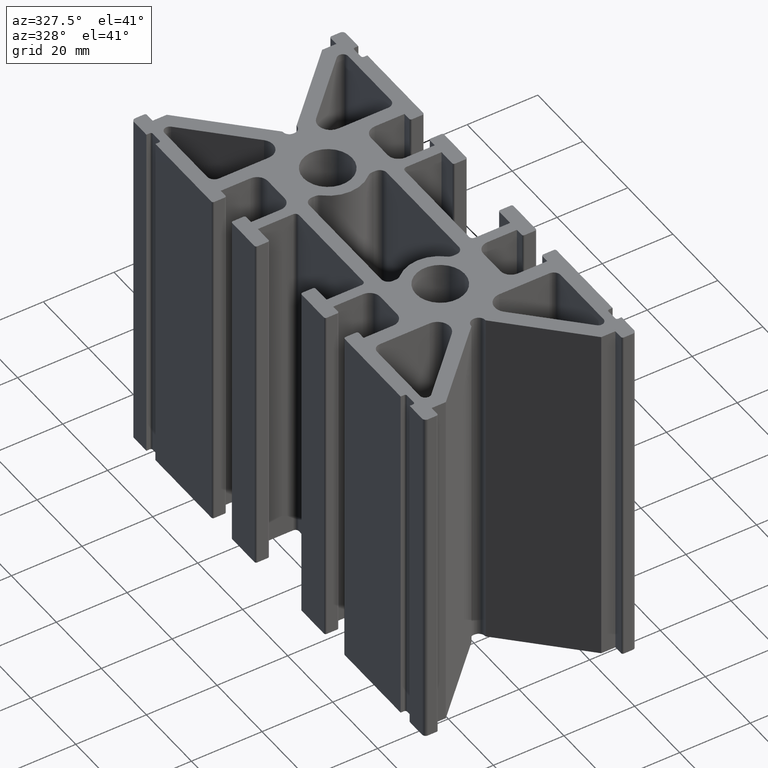
[diagram: clean part render]
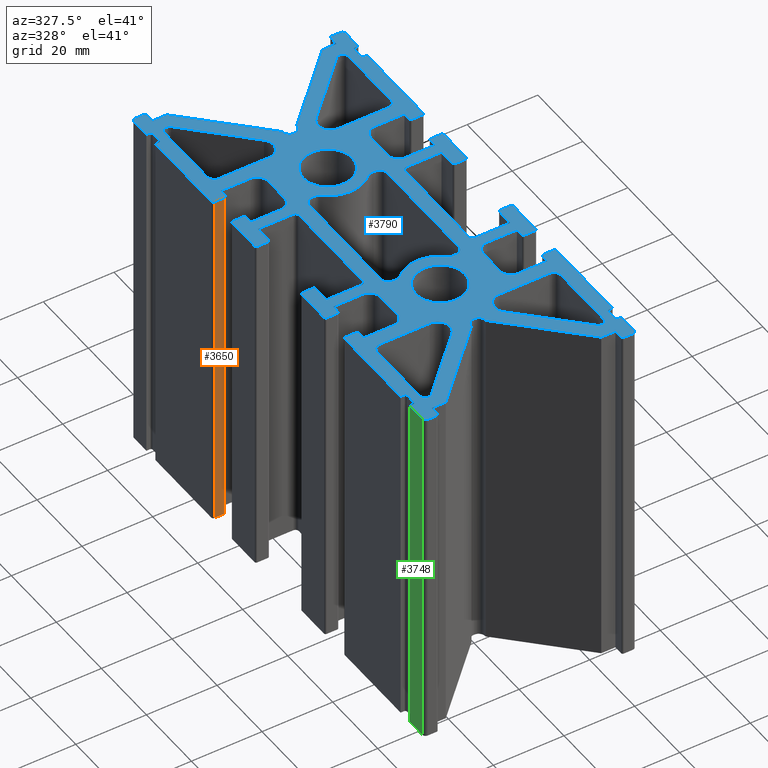
[diagram: same view with three faces highlighted in distinct colors, each labeled with its STEP entity id]
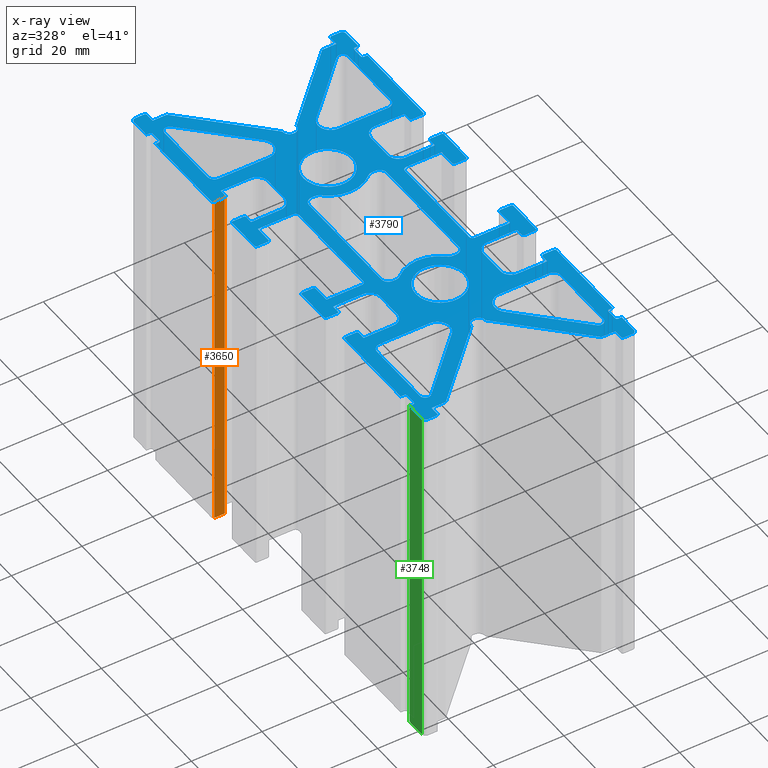
[diagram: x-ray of the same camera — body ghosted, the three highlighted faces saturated]
A machine part, auxiliary view with three faces highlighted in distinct colors.
The next image is the same camera in x-ray (body ghosted, the three faces saturated) — at least one of them is partly hidden behind the body in this view.
Their STEP definitions:

[orange] entity #3650 — the highlighted planar face has unit normal (0, -1, 0).
#52=PLANE('',#3946);
#186=FACE_OUTER_BOUND('',#383,.T.);
#383=EDGE_LOOP('',(#2777,#2778,#2779,#2780));
#770=LINE('',#5499,#1166);
#861=LINE('',#5792,#1257);
#862=LINE('',#5795,#1258);
#863=LINE('',#5796,#1259);
#1166=VECTOR('',#4408,2.99999999999969);
#1257=VECTOR('',#4619,100.);
#1258=VECTOR('',#4622,2.99999999999969);
#1259=VECTOR('',#4623,100.);
#1572=VERTEX_POINT('',#5496);
#1573=VERTEX_POINT('',#5498);
#1715=VERTEX_POINT('',#5790);
#1716=VERTEX_POINT('',#5794);
#1984=EDGE_CURVE('',#1572,#1573,#770,.T.);
#2131=EDGE_CURVE('',#1572,#1715,#861,.T.);
#2132=EDGE_CURVE('',#1716,#1715,#862,.T.);
#2133=EDGE_CURVE('',#1573,#1716,#863,.T.);
#2777=ORIENTED_EDGE('',*,*,#2131,.T.);
#2778=ORIENTED_EDGE('',*,*,#2132,.F.);
#2779=ORIENTED_EDGE('',*,*,#2133,.F.);
#2780=ORIENTED_EDGE('',*,*,#1984,.F.);
#3650=ADVANCED_FACE('',(#186),#52,.T.);
#3946=AXIS2_PLACEMENT_3D('',#5793,#4620,#4621);
#4408=DIRECTION('',(-1.,-1.48029736616703E-15,0.));
#4619=DIRECTION('',(0.,0.,1.));
#4620=DIRECTION('center_axis',(1.48029736616703E-15,-1.,0.));
#4621=DIRECTION('ref_axis',(1.,1.4210854715202E-15,0.));
#4622=DIRECTION('',(1.,1.48029736616703E-15,0.));
#4623=DIRECTION('',(0.,0.,1.));
#5496=CARTESIAN_POINT('',(-26.5000000000039,29.1499999999998,-50.));
#5498=CARTESIAN_POINT('',(-29.5000000000036,29.1499999999998,-50.));
#5499=CARTESIAN_POINT('',(-29.5000000000036,29.1499999999998,-50.));
#5790=CARTESIAN_POINT('',(-26.5000000000039,29.1499999999998,50.));
#5792=CARTESIAN_POINT('',(-26.5000000000039,29.1499999999998,0.));
#5793=CARTESIAN_POINT('Origin',(-29.5000000000036,29.1499999999998,0.));
#5794=CARTESIAN_POINT('',(-29.5000000000036,29.1499999999998,50.));
#5795=CARTESIAN_POINT('',(-29.5000000000036,29.1499999999998,50.));
#5796=CARTESIAN_POINT('',(-29.5000000000036,29.1499999999998,0.));

[blue] entity #3790 — the highlighted planar face has unit normal (0, 0, 1).
#24=FACE_BOUND('',#524,.T.);
#25=FACE_BOUND('',#525,.T.);
#26=FACE_BOUND('',#526,.T.);
#27=FACE_BOUND('',#527,.T.);
#28=FACE_BOUND('',#528,.T.);
#29=FACE_BOUND('',#529,.T.);
#30=FACE_BOUND('',#530,.T.);
#138=PLANE('',#4140);
#326=FACE_OUTER_BOUND('',#523,.T.);
#523=EDGE_LOOP('',(#3337,#3338,#3339,#3340,#3341,#3342,#3343,#3344,#3345,
#3346,#3347,#3348,#3349,#3350,#3351,#3352,#3353,#3354,#3355,#3356,#3357,
#3358,#3359,#3360,#3361,#3362,#3363,#3364,#3365,#3366,#3367,#3368,#3369,
#3370,#3371,#3372,#3373,#3374,#3375,#3376,#3377,#3378,#3379,#3380,#3381,
#3382,#3383,#3384,#3385,#3386,#3387,#3388,#3389,#3390,#3391,#3392,#3393,
#3394,#3395,#3396,#3397,#3398,#3399,#3400,#3401,#3402,#3403,#3404,#3405,
#3406,#3407,#3408,#3409,#3410,#3411,#3412,#3413,#3414,#3415,#3416,#3417,
#3418,#3419,#3420,#3421,#3422,#3423,#3424,#3425,#3426,#3427,#3428,#3429,
#3430,#3431,#3432,#3433,#3434,#3435,#3436,#3437,#3438,#3439,#3440,#3441,
#3442,#3443,#3444,#3445,#3446,#3447,#3448,#3449,#3450,#3451,#3452,#3453,
#3454,#3455,#3456,#3457,#3458,#3459,#3460,#3461,#3462,#3463,#3464,#3465,
#3466,#3467,#3468,#3469,#3470,#3471,#3472,#3473,#3474,#3475,#3476,#3477,
#3478,#3479,#3480));
#524=EDGE_LOOP('',(#3481,#3482,#3483,#3484,#3485,#3486,#3487,#3488,#3489,
#3490,#3491,#3492,#3493,#3494,#3495,#3496));
#525=EDGE_LOOP('',(#3497,#3498,#3499,#3500,#3501,#3502));
#526=EDGE_LOOP('',(#3503,#3504,#3505,#3506,#3507,#3508));
#527=EDGE_LOOP('',(#3509,#3510,#3511,#3512,#3513,#3514));
#528=EDGE_LOOP('',(#3515,#3516,#3517,#3518,#3519,#3520));
#529=EDGE_LOOP('',(#3521));
#530=EDGE_LOOP('',(#3522));
#532=CIRCLE('',#3795,2.00000000000001);
#534=CIRCLE('',#3799,2.);
#536=CIRCLE('',#3802,9.90000000000002);
#538=CIRCLE('',#3805,2.);
#540=CIRCLE('',#3809,2.);
#542=CIRCLE('',#3813,2.);
#544=CIRCLE('',#3817,2.);
#546=CIRCLE('',#3820,9.90000000000002);
#548=CIRCLE('',#3823,2.);
#550=CIRCLE('',#3827,2.);
#552=CIRCLE('',#3831,1.5);
#554=CIRCLE('',#3835,2.);
#556=CIRCLE('',#3839,3.50000000000001);
#558=CIRCLE('',#3843,2.);
#560=CIRCLE('',#3847,1.5);
#562=CIRCLE('',#3851,3.50000000000001);
#564=CIRCLE('',#3855,3.5);
#566=CIRCLE('',#3859,1.5);
#568=CIRCLE('',#3863,2.);
#570=CIRCLE('',#3867,2.);
#572=CIRCLE('',#3871,1.5);
#574=CIRCLE('',#3875,3.5);
#576=CIRCLE('',#3879,6.90000000000001);
#578=CIRCLE('',#3882,6.90000000000001);
#635=CIRCLE('',#3941,3.00000000000001);
#636=CIRCLE('',#3945,0.5);
#637=CIRCLE('',#3948,0.5);
#638=CIRCLE('',#3952,0.5);
#639=CIRCLE('',#3955,0.5);
#640=CIRCLE('',#3959,1.);
#641=CIRCLE('',#3962,0.5);
#642=CIRCLE('',#3968,1.9);
#643=CIRCLE('',#3971,1.9);
#644=CIRCLE('',#3977,0.5);
#645=CIRCLE('',#3980,1.);
#646=CIRCLE('',#3984,0.5);
#647=CIRCLE('',#3987,0.5);
#648=CIRCLE('',#3991,0.5);
#649=CIRCLE('',#3994,0.5);
#650=CIRCLE('',#3998,3.00000000000001);
#651=CIRCLE('',#4001,3.);
#652=CIRCLE('',#4005,0.5);
#653=CIRCLE('',#4008,0.5);
#654=CIRCLE('',#4011,0.500000000000005);
#655=CIRCLE('',#4014,0.5);
#656=CIRCLE('',#4018,1.);
#657=CIRCLE('',#4021,1.);
#658=CIRCLE('',#4025,0.5);
#659=CIRCLE('',#4028,0.5);
#660=CIRCLE('',#4031,0.500000000000005);
#661=CIRCLE('',#4034,0.5);
#662=CIRCLE('',#4038,3.);
#663=CIRCLE('',#4041,3.);
#664=CIRCLE('',#4045,0.5);
#665=CIRCLE('',#4048,0.5);
#666=CIRCLE('',#4052,0.5);
#667=CIRCLE('',#4055,0.5);
#668=CIRCLE('',#4059,1.);
#669=CIRCLE('',#4062,0.5);
#670=CIRCLE('',#4068,1.9);
#671=CIRCLE('',#4071,1.9);
#672=CIRCLE('',#4077,0.5);
#673=CIRCLE('',#4080,1.);
#674=CIRCLE('',#4084,0.5);
#675=CIRCLE('',#4087,0.5);
#676=CIRCLE('',#4091,0.499999999999998);
#677=CIRCLE('',#4094,0.5);
#678=CIRCLE('',#4098,2.99999999999999);
#679=CIRCLE('',#4101,3.00000000000001);
#680=CIRCLE('',#4105,0.499999999999994);
#681=CIRCLE('',#4108,0.5);
#682=CIRCLE('',#4111,0.5);
#683=CIRCLE('',#4114,0.5);
#684=CIRCLE('',#4118,1.);
#685=CIRCLE('',#4121,1.);
#686=CIRCLE('',#4125,0.5);
#687=CIRCLE('',#4128,0.5);
#688=CIRCLE('',#4131,0.5);
#689=CIRCLE('',#4134,0.5);
#690=CIRCLE('',#4138,3.);
#695=LINE('',#5250,#1091);
#701=LINE('',#5274,#1097);
#705=LINE('',#5286,#1101);
#709=LINE('',#5298,#1105);
#715=LINE('',#5322,#1111);
#718=LINE('',#5331,#1114);
#723=LINE('',#5346,#1119);
#727=LINE('',#5358,#1123);
#730=LINE('',#5367,#1126);
#735=LINE('',#5382,#1131);
#739=LINE('',#5394,#1135);
#742=LINE('',#5403,#1138);
#747=LINE('',#5418,#1143);
#751=LINE('',#5430,#1147);
#754=LINE('',#5439,#1150);
#759=LINE('',#5454,#1155);
#763=LINE('',#5466,#1159);
#766=LINE('',#5475,#1162);
#857=LINE('',#5783,#1253);
#859=LINE('',#5787,#1255);
#862=LINE('',#5795,#1258);
#865=LINE('',#5803,#1261);
#867=LINE('',#5807,#1263);
#870=LINE('',#5815,#1266);
#873=LINE('',#5823,#1269);
#875=LINE('',#5827,#1271);
#878=LINE('',#5835,#1274);
#881=LINE('',#5843,#1277);
#883=LINE('',#5847,#1279);
#885=LINE('',#5851,#1281);
#887=LINE('',#5855,#1283);
#890=LINE('',#5863,#1286);
#893=LINE('',#5871,#1289);
#895=LINE('',#5875,#1291);
#897=LINE('',#5879,#1293);
#899=LINE('',#5883,#1295);
#902=LINE('',#5891,#1298);
#905=LINE('',#5899,#1301);
#907=LINE('',#5903,#1303);
#910=LINE('',#5911,#1306);
#913=LINE('',#5919,#1309);
#915=LINE('',#5923,#1311);
#918=LINE('',#5931,#1314);
#921=LINE('',#5939,#1317);
#923=LINE('',#5943,#1319);
#926=LINE('',#5951,#1322);
#929=LINE('',#5959,#1325);
#931=LINE('',#5963,#1327);
#934=LINE('',#5971,#1330);
#937=LINE('',#5979,#1333);
#940=LINE('',#5987,#1336);
#943=LINE('',#5995,#1339);
#945=LINE('',#5999,#1341);
#948=LINE('',#6007,#1344);
#951=LINE('',#6015,#1347);
#953=LINE('',#6019,#1349);
#956=LINE('',#6027,#1352);
#959=LINE('',#6035,#1355);
#962=LINE('',#6043,#1358);
#965=LINE('',#6051,#1361);
#967=LINE('',#6055,#1363);
#970=LINE('',#6063,#1366);
#973=LINE('',#6071,#1369);
#975=LINE('',#6075,#1371);
#978=LINE('',#6083,#1374);
#981=LINE('',#6091,#1377);
#983=LINE('',#6095,#1379);
#986=LINE('',#6103,#1382);
#989=LINE('',#6111,#1385);
#991=LINE('',#6115,#1387);
#994=LINE('',#6123,#1390);
#997=LINE('',#6131,#1393);
#999=LINE('',#6135,#1395);
#1001=LINE('',#6139,#1397);
#1003=LINE('',#6143,#1399);
#1006=LINE('',#6151,#1402);
#1009=LINE('',#6159,#1405);
#1011=LINE('',#6163,#1407);
#1013=LINE('',#6167,#1409);
#1015=LINE('',#6171,#1411);
#1018=LINE('',#6179,#1414);
#1021=LINE('',#6187,#1417);
#1023=LINE('',#6191,#1419);
#1026=LINE('',#6199,#1422);
#1029=LINE('',#6207,#1425);
#1031=LINE('',#6211,#1427);
#1034=LINE('',#6219,#1430);
#1037=LINE('',#6227,#1433);
#1039=LINE('',#6231,#1435);
#1042=LINE('',#6239,#1438);
#1045=LINE('',#6247,#1441);
#1047=LINE('',#6251,#1443);
#1050=LINE('',#6259,#1446);
#1053=LINE('',#6267,#1449);
#1056=LINE('',#6275,#1452);
#1059=LINE('',#6283,#1455);
#1061=LINE('',#6287,#1457);
#1064=LINE('',#6295,#1460);
#1067=LINE('',#6303,#1463);
#1069=LINE('',#6307,#1465);
#1072=LINE('',#6315,#1468);
#1075=LINE('',#6323,#1471);
#1078=LINE('',#6331,#1474);
#1081=LINE('',#6339,#1477);
#1083=LINE('',#6343,#1479);
#1086=LINE('',#6350,#1482);
#1091=VECTOR('',#4155,0.934796964740059);
#1097=VECTOR('',#4181,0.934796964736364);
#1101=VECTOR('',#4193,32.0000000000001);
#1105=VECTOR('',#4205,0.934796964737927);
#1111=VECTOR('',#4231,0.934796964736648);
#1114=VECTOR('',#4242,32.0000000000001);
#1119=VECTOR('',#4255,18.9718254069434);
#1123=VECTOR('',#4267,14.1433982821968);
#1126=VECTOR('',#4278,22.7088924499139);
#1131=VECTOR('',#4291,18.9718254069393);
#1135=VECTOR('',#4303,22.7088924499088);
#1138=VECTOR('',#4314,14.1433982821935);
#1143=VECTOR('',#4327,22.7088924499252);
#1147=VECTOR('',#4339,18.9718254069513);
#1150=VECTOR('',#4350,14.1433982822048);
#1155=VECTOR('',#4363,18.9718254069503);
#1159=VECTOR('',#4375,22.7088924499244);
#1162=VECTOR('',#4386,14.1433982822046);
#1253=VECTOR('',#4609,8.40000000000202);
#1255=VECTOR('',#4613,2.10000000000017);
#1258=VECTOR('',#4622,2.99999999999969);
#1261=VECTOR('',#4631,24.8500000000004);
#1263=VECTOR('',#4635,0.999999999999943);
#1266=VECTOR('',#4644,3.00000000000032);
#1269=VECTOR('',#4653,0.999999999999943);
#1271=VECTOR('',#4657,5.4999999999965);
#1274=VECTOR('',#4666,2.49999999999972);
#1277=VECTOR('',#4675,2.49999999999813);
#1279=VECTOR('',#4679,3.99999999999807);
#1281=VECTOR('',#4683,28.2842712474705);
#1283=VECTOR('',#4687,0.0999999999941359);
#1286=VECTOR('',#4696,0.19999999999996);
#1289=VECTOR('',#4705,0.100000000004554);
#1291=VECTOR('',#4709,28.2842712474554);
#1293=VECTOR('',#4713,4.00000000000048);
#1295=VECTOR('',#4717,2.49999999999798);
#1298=VECTOR('',#4726,2.50000000000043);
#1301=VECTOR('',#4735,5.49999999999639);
#1303=VECTOR('',#4739,0.999999999999801);
#1306=VECTOR('',#4748,3.00000000000032);
#1309=VECTOR('',#4757,0.999999999999801);
#1311=VECTOR('',#4761,24.8500000000005);
#1314=VECTOR('',#4770,3.0000000000004);
#1317=VECTOR('',#4779,2.10000000000005);
#1319=VECTOR('',#4783,8.3999999999979);
#1322=VECTOR('',#4792,7.50000000000007);
#1325=VECTOR('',#4801,8.3999999999979);
#1327=VECTOR('',#4805,2.10000000000005);
#1330=VECTOR('',#4814,3.0000000000004);
#1333=VECTOR('',#4823,9.84999999999976);
#1336=VECTOR('',#4832,3.0000000000004);
#1339=VECTOR('',#4841,4.74999999999957);
#1341=VECTOR('',#4845,9.99999999999773);
#1344=VECTOR('',#4854,28.5);
#1347=VECTOR('',#4863,9.99999999999773);
#1349=VECTOR('',#4867,4.75000000000036);
#1352=VECTOR('',#4876,3.0000000000004);
#1355=VECTOR('',#4885,9.85000000000021);
#1358=VECTOR('',#4894,3.0000000000004);
#1361=VECTOR('',#4903,2.09999999999991);
#1363=VECTOR('',#4907,8.3999999999979);
#1366=VECTOR('',#4916,7.50000000000018);
#1369=VECTOR('',#4925,8.3999999999979);
#1371=VECTOR('',#4929,2.10000000000033);
#1374=VECTOR('',#4938,3.0000000000004);
#1377=VECTOR('',#4947,24.8500000000001);
#1379=VECTOR('',#4951,0.999999999999801);
#1382=VECTOR('',#4960,3.00000000000016);
#1385=VECTOR('',#4969,0.999999999999801);
#1387=VECTOR('',#4973,5.50000000000291);
#1390=VECTOR('',#4982,2.50000000000043);
#1393=VECTOR('',#4991,2.50000000000145);
#1395=VECTOR('',#4995,3.99999999999949);
#1397=VECTOR('',#4999,28.2842712474561);
#1399=VECTOR('',#5003,0.100000000004608);
#1402=VECTOR('',#5012,0.19999999999996);
#1405=VECTOR('',#5021,0.099999999996383);
#1407=VECTOR('',#5025,28.2842712474665);
#1409=VECTOR('',#5029,4.00000000000134);
#1411=VECTOR('',#5033,2.50000000000195);
#1414=VECTOR('',#5042,2.49999999999972);
#1417=VECTOR('',#5051,5.5000000000028);
#1419=VECTOR('',#5055,0.999999999999943);
#1422=VECTOR('',#5064,3.00000000000005);
#1425=VECTOR('',#5073,0.999999999999943);
#1427=VECTOR('',#5077,24.85);
#1430=VECTOR('',#5086,2.99999999999969);
#1433=VECTOR('',#5095,2.10000000000033);
#1435=VECTOR('',#5099,8.40000000000202);
#1438=VECTOR('',#5108,7.50000000000019);
#1441=VECTOR('',#5117,8.40000000000202);
#1443=VECTOR('',#5121,2.09999999999991);
#1446=VECTOR('',#5130,2.99999999999969);
#1449=VECTOR('',#5139,9.85000000000022);
#1452=VECTOR('',#5148,2.99999999999969);
#1455=VECTOR('',#5157,4.75000000000047);
#1457=VECTOR('',#5161,10.0000000000023);
#1460=VECTOR('',#5170,28.5000000000001);
#1463=VECTOR('',#5179,10.0000000000023);
#1465=VECTOR('',#5183,4.74999999999969);
#1468=VECTOR('',#5192,2.99999999999969);
#1471=VECTOR('',#5201,9.84999999999977);
#1474=VECTOR('',#5210,2.99999999999969);
#1477=VECTOR('',#5219,2.10000000000016);
#1479=VECTOR('',#5223,8.40000000000202);
#1482=VECTOR('',#5232,7.50000000000007);
#1483=VERTEX_POINT('',#5237);
#1486=VERTEX_POINT('',#5242);
#1488=VERTEX_POINT('',#5248);
#1490=VERTEX_POINT('',#5254);
#1492=VERTEX_POINT('',#5260);
#1494=VERTEX_POINT('',#5266);
#1496=VERTEX_POINT('',#5272);
#1498=VERTEX_POINT('',#5278);
#1500=VERTEX_POINT('',#5284);
#1502=VERTEX_POINT('',#5290);
#1504=VERTEX_POINT('',#5296);
#1506=VERTEX_POINT('',#5302);
#1508=VERTEX_POINT('',#5308);
#1510=VERTEX_POINT('',#5314);
#1512=VERTEX_POINT('',#5320);
#1514=VERTEX_POINT('',#5326);
#1515=VERTEX_POINT('',#5333);
#1518=VERTEX_POINT('',#5338);
#1520=VERTEX_POINT('',#5344);
#1522=VERTEX_POINT('',#5350);
#1524=VERTEX_POINT('',#5356);
#1526=VERTEX_POINT('',#5362);
#1527=VERTEX_POINT('',#5369);
#1530=VERTEX_POINT('',#5374);
#1532=VERTEX_POINT('',#5380);
#1534=VERTEX_POINT('',#5386);
#1536=VERTEX_POINT('',#5392);
#1538=VERTEX_POINT('',#5398);
#1539=VERTEX_POINT('',#5405);
#1542=VERTEX_POINT('',#5410);
#1544=VERTEX_POINT('',#5416);
#1546=VERTEX_POINT('',#5422);
#1548=VERTEX_POINT('',#5428);
#1550=VERTEX_POINT('',#5434);
#1551=VERTEX_POINT('',#5441);
#1554=VERTEX_POINT('',#5446);
#1556=VERTEX_POINT('',#5452);
#1558=VERTEX_POINT('',#5458);
#1560=VERTEX_POINT('',#5464);
#1562=VERTEX_POINT('',#5470);
#1564=VERTEX_POINT('',#5479);
#1566=VERTEX_POINT('',#5484);
#1711=VERTEX_POINT('',#5776);
#1712=VERTEX_POINT('',#5778);
#1713=VERTEX_POINT('',#5782);
#1714=VERTEX_POINT('',#5786);
#1715=VERTEX_POINT('',#5790);
#1716=VERTEX_POINT('',#5794);
#1717=VERTEX_POINT('',#5798);
#1718=VERTEX_POINT('',#5802);
#1719=VERTEX_POINT('',#5806);
#1720=VERTEX_POINT('',#5810);
#1721=VERTEX_POINT('',#5814);
#1722=VERTEX_POINT('',#5818);
#1723=VERTEX_POINT('',#5822);
#1724=VERTEX_POINT('',#5826);
#1725=VERTEX_POINT('',#5830);
#1726=VERTEX_POINT('',#5834);
#1727=VERTEX_POINT('',#5838);
#1728=VERTEX_POINT('',#5842);
#1729=VERTEX_POINT('',#5846);
#1730=VERTEX_POINT('',#5850);
#1731=VERTEX_POINT('',#5854);
#1732=VERTEX_POINT('',#5858);
#1733=VERTEX_POINT('',#5862);
#1734=VERTEX_POINT('',#5866);
#1735=VERTEX_POINT('',#5870);
#1736=VERTEX_POINT('',#5874);
#1737=VERTEX_POINT('',#5878);
#1738=VERTEX_POINT('',#5882);
#1739=VERTEX_POINT('',#5886);
#1740=VERTEX_POINT('',#5890);
#1741=VERTEX_POINT('',#5894);
#1742=VERTEX_POINT('',#5898);
#1743=VERTEX_POINT('',#5902);
#1744=VERTEX_POINT('',#5906);
#1745=VERTEX_POINT('',#5910);
#1746=VERTEX_POINT('',#5914);
#1747=VERTEX_POINT('',#5918);
#1748=VERTEX_POINT('',#5922);
#1749=VERTEX_POINT('',#5926);
#1750=VERTEX_POINT('',#5930);
#1751=VERTEX_POINT('',#5934);
#1752=VERTEX_POINT('',#5938);
#1753=VERTEX_POINT('',#5942);
#1754=VERTEX_POINT('',#5946);
#1755=VERTEX_POINT('',#5950);
#1756=VERTEX_POINT('',#5954);
#1757=VERTEX_POINT('',#5958);
#1758=VERTEX_POINT('',#5962);
#1759=VERTEX_POINT('',#5966);
#1760=VERTEX_POINT('',#5970);
#1761=VERTEX_POINT('',#5974);
#1762=VERTEX_POINT('',#5978);
#1763=VERTEX_POINT('',#5982);
#1764=VERTEX_POINT('',#5986);
#1765=VERTEX_POINT('',#5990);
#1766=VERTEX_POINT('',#5994);
#1767=VERTEX_POINT('',#5998);
#1768=VERTEX_POINT('',#6002);
#1769=VERTEX_POINT('',#6006);
#1770=VERTEX_POINT('',#6010);
#1771=VERTEX_POINT('',#6014);
#1772=VERTEX_POINT('',#6018);
#1773=VERTEX_POINT('',#6022);
#1774=VERTEX_POINT('',#6026);
#1775=VERTEX_POINT('',#6030);
#1776=VERTEX_POINT('',#6034);
#1777=VERTEX_POINT('',#6038);
#1778=VERTEX_POINT('',#6042);
#1779=VERTEX_POINT('',#6046);
#1780=VERTEX_POINT('',#6050);
#1781=VERTEX_POINT('',#6054);
#1782=VERTEX_POINT('',#6058);
#1783=VERTEX_POINT('',#6062);
#1784=VERTEX_POINT('',#6066);
#1785=VERTEX_POINT('',#6070);
#1786=VERTEX_POINT('',#6074);
#1787=VERTEX_POINT('',#6078);
#1788=VERTEX_POINT('',#6082);
#1789=VERTEX_POINT('',#6086);
#1790=VERTEX_POINT('',#6090);
#1791=VERTEX_POINT('',#6094);
#1792=VERTEX_POINT('',#6098);
#1793=VERTEX_POINT('',#6102);
#1794=VERTEX_POINT('',#6106);
#1795=VERTEX_POINT('',#6110);
#1796=VERTEX_POINT('',#6114);
#1797=VERTEX_POINT('',#6118);
#1798=VERTEX_POINT('',#6122);
#1799=VERTEX_POINT('',#6126);
#1800=VERTEX_POINT('',#6130);
#1801=VERTEX_POINT('',#6134);
#1802=VERTEX_POINT('',#6138);
#1803=VERTEX_POINT('',#6142);
#1804=VERTEX_POINT('',#6146);
#1805=VERTEX_POINT('',#6150);
#1806=VERTEX_POINT('',#6154);
#1807=VERTEX_POINT('',#6158);
#1808=VERTEX_POINT('',#6162);
#1809=VERTEX_POINT('',#6166);
#1810=VERTEX_POINT('',#6170);
#1811=VERTEX_POINT('',#6174);
#1812=VERTEX_POINT('',#6178);
#1813=VERTEX_POINT('',#6182);
#1814=VERTEX_POINT('',#6186);
#1815=VERTEX_POINT('',#6190);
#1816=VERTEX_POINT('',#6194);
#1817=VERTEX_POINT('',#6198);
#1818=VERTEX_POINT('',#6202);
#1819=VERTEX_POINT('',#6206);
#1820=VERTEX_POINT('',#6210);
#1821=VERTEX_POINT('',#6214);
#1822=VERTEX_POINT('',#6218);
#1823=VERTEX_POINT('',#6222);
#1824=VERTEX_POINT('',#6226);
#1825=VERTEX_POINT('',#6230);
#1826=VERTEX_POINT('',#6234);
#1827=VERTEX_POINT('',#6238);
#1828=VERTEX_POINT('',#6242);
#1829=VERTEX_POINT('',#6246);
#1830=VERTEX_POINT('',#6250);
#1831=VERTEX_POINT('',#6254);
#1832=VERTEX_POINT('',#6258);
#1833=VERTEX_POINT('',#6262);
#1834=VERTEX_POINT('',#6266);
#1835=VERTEX_POINT('',#6270);
#1836=VERTEX_POINT('',#6274);
#1837=VERTEX_POINT('',#6278);
#1838=VERTEX_POINT('',#6282);
#1839=VERTEX_POINT('',#6286);
#1840=VERTEX_POINT('',#6290);
#1841=VERTEX_POINT('',#6294);
#1842=VERTEX_POINT('',#6298);
#1843=VERTEX_POINT('',#6302);
#1844=VERTEX_POINT('',#6306);
#1845=VERTEX_POINT('',#6310);
#1846=VERTEX_POINT('',#6314);
#1847=VERTEX_POINT('',#6318);
#1848=VERTEX_POINT('',#6322);
#1849=VERTEX_POINT('',#6326);
#1850=VERTEX_POINT('',#6330);
#1851=VERTEX_POINT('',#6334);
#1852=VERTEX_POINT('',#6338);
#1853=VERTEX_POINT('',#6342);
#1854=VERTEX_POINT('',#6346);
#1858=EDGE_CURVE('',#1483,#1486,#532,.T.);
#1861=EDGE_CURVE('',#1486,#1488,#695,.T.);
#1864=EDGE_CURVE('',#1488,#1490,#534,.T.);
#1867=EDGE_CURVE('',#1490,#1492,#536,.T.);
#1870=EDGE_CURVE('',#1492,#1494,#538,.T.);
#1873=EDGE_CURVE('',#1494,#1496,#701,.T.);
#1876=EDGE_CURVE('',#1496,#1498,#540,.T.);
#1879=EDGE_CURVE('',#1498,#1500,#705,.T.);
#1882=EDGE_CURVE('',#1500,#1502,#542,.T.);
#1885=EDGE_CURVE('',#1502,#1504,#709,.T.);
#1888=EDGE_CURVE('',#1504,#1506,#544,.T.);
#1891=EDGE_CURVE('',#1506,#1508,#546,.T.);
#1894=EDGE_CURVE('',#1508,#1510,#548,.T.);
#1897=EDGE_CURVE('',#1510,#1512,#715,.T.);
#1900=EDGE_CURVE('',#1512,#1514,#550,.T.);
#1902=EDGE_CURVE('',#1514,#1483,#718,.T.);
#1906=EDGE_CURVE('',#1515,#1518,#552,.T.);
#1909=EDGE_CURVE('',#1518,#1520,#723,.T.);
#1912=EDGE_CURVE('',#1520,#1522,#554,.T.);
#1915=EDGE_CURVE('',#1522,#1524,#727,.T.);
#1918=EDGE_CURVE('',#1524,#1526,#556,.T.);
#1920=EDGE_CURVE('',#1526,#1515,#730,.T.);
#1924=EDGE_CURVE('',#1527,#1530,#558,.T.);
#1927=EDGE_CURVE('',#1530,#1532,#735,.T.);
#1930=EDGE_CURVE('',#1532,#1534,#560,.T.);
#1933=EDGE_CURVE('',#1534,#1536,#739,.T.);
#1936=EDGE_CURVE('',#1536,#1538,#562,.T.);
#1938=EDGE_CURVE('',#1538,#1527,#742,.T.);
#1942=EDGE_CURVE('',#1539,#1542,#564,.T.);
#1945=EDGE_CURVE('',#1542,#1544,#747,.T.);
#1948=EDGE_CURVE('',#1544,#1546,#566,.T.);
#1951=EDGE_CURVE('',#1546,#1548,#751,.T.);
#1954=EDGE_CURVE('',#1548,#1550,#568,.T.);
#1956=EDGE_CURVE('',#1550,#1539,#754,.T.);
#1960=EDGE_CURVE('',#1551,#1554,#570,.T.);
#1963=EDGE_CURVE('',#1554,#1556,#759,.T.);
#1966=EDGE_CURVE('',#1556,#1558,#572,.T.);
#1969=EDGE_CURVE('',#1558,#1560,#763,.T.);
#1972=EDGE_CURVE('',#1560,#1562,#574,.T.);
#1974=EDGE_CURVE('',#1562,#1551,#766,.T.);
#1976=EDGE_CURVE('',#1564,#1564,#576,.T.);
#1978=EDGE_CURVE('',#1566,#1566,#578,.T.);
#2124=EDGE_CURVE('',#1712,#1711,#635,.T.);
#2126=EDGE_CURVE('',#1713,#1712,#857,.T.);
#2128=EDGE_CURVE('',#1714,#1713,#859,.T.);
#2130=EDGE_CURVE('',#1715,#1714,#636,.T.);
#2132=EDGE_CURVE('',#1716,#1715,#862,.T.);
#2134=EDGE_CURVE('',#1717,#1716,#637,.T.);
#2136=EDGE_CURVE('',#1718,#1717,#865,.T.);
#2138=EDGE_CURVE('',#1719,#1718,#867,.T.);
#2140=EDGE_CURVE('',#1720,#1719,#638,.T.);
#2142=EDGE_CURVE('',#1721,#1720,#870,.T.);
#2144=EDGE_CURVE('',#1722,#1721,#639,.T.);
#2146=EDGE_CURVE('',#1723,#1722,#873,.T.);
#2148=EDGE_CURVE('',#1724,#1723,#875,.T.);
#2150=EDGE_CURVE('',#1725,#1724,#640,.T.);
#2152=EDGE_CURVE('',#1726,#1725,#878,.T.);
#2154=EDGE_CURVE('',#1727,#1726,#641,.T.);
#2156=EDGE_CURVE('',#1728,#1727,#881,.T.);
#2158=EDGE_CURVE('',#1729,#1728,#883,.T.);
#2160=EDGE_CURVE('',#1730,#1729,#885,.T.);
#2162=EDGE_CURVE('',#1731,#1730,#887,.T.);
#2164=EDGE_CURVE('',#1732,#1731,#642,.T.);
#2166=EDGE_CURVE('',#1733,#1732,#890,.T.);
#2168=EDGE_CURVE('',#1734,#1733,#643,.T.);
#2170=EDGE_CURVE('',#1735,#1734,#893,.T.);
#2172=EDGE_CURVE('',#1736,#1735,#895,.T.);
#2174=EDGE_CURVE('',#1737,#1736,#897,.T.);
#2176=EDGE_CURVE('',#1738,#1737,#899,.T.);
#2178=EDGE_CURVE('',#1739,#1738,#644,.T.);
#2180=EDGE_CURVE('',#1740,#1739,#902,.T.);
#2182=EDGE_CURVE('',#1741,#1740,#645,.T.);
#2184=EDGE_CURVE('',#1742,#1741,#905,.T.);
#2186=EDGE_CURVE('',#1743,#1742,#907,.T.);
#2188=EDGE_CURVE('',#1744,#1743,#646,.T.);
#2190=EDGE_CURVE('',#1745,#1744,#910,.T.);
#2192=EDGE_CURVE('',#1746,#1745,#647,.T.);
#2194=EDGE_CURVE('',#1747,#1746,#913,.T.);
#2196=EDGE_CURVE('',#1748,#1747,#915,.T.);
#2198=EDGE_CURVE('',#1749,#1748,#648,.T.);
#2200=EDGE_CURVE('',#1750,#1749,#918,.T.);
#2202=EDGE_CURVE('',#1751,#1750,#649,.T.);
#2204=EDGE_CURVE('',#1752,#1751,#921,.T.);
#2206=EDGE_CURVE('',#1753,#1752,#923,.T.);
#2208=EDGE_CURVE('',#1754,#1753,#650,.T.);
#2210=EDGE_CURVE('',#1755,#1754,#926,.T.);
#2212=EDGE_CURVE('',#1756,#1755,#651,.T.);
#2214=EDGE_CURVE('',#1757,#1756,#929,.T.);
#2216=EDGE_CURVE('',#1758,#1757,#931,.T.);
#2218=EDGE_CURVE('',#1759,#1758,#652,.T.);
#2220=EDGE_CURVE('',#1760,#1759,#934,.T.);
#2222=EDGE_CURVE('',#1761,#1760,#653,.T.);
#2224=EDGE_CURVE('',#1762,#1761,#937,.T.);
#2226=EDGE_CURVE('',#1763,#1762,#654,.T.);
#2228=EDGE_CURVE('',#1764,#1763,#940,.T.);
#2230=EDGE_CURVE('',#1765,#1764,#655,.T.);
#2232=EDGE_CURVE('',#1766,#1765,#943,.T.);
#2234=EDGE_CURVE('',#1767,#1766,#945,.T.);
#2236=EDGE_CURVE('',#1768,#1767,#656,.T.);
#2238=EDGE_CURVE('',#1769,#1768,#948,.T.);
#2240=EDGE_CURVE('',#1770,#1769,#657,.T.);
#2242=EDGE_CURVE('',#1771,#1770,#951,.T.);
#2244=EDGE_CURVE('',#1772,#1771,#953,.T.);
#2246=EDGE_CURVE('',#1773,#1772,#658,.T.);
#2248=EDGE_CURVE('',#1774,#1773,#956,.T.);
#2250=EDGE_CURVE('',#1775,#1774,#659,.T.);
#2252=EDGE_CURVE('',#1776,#1775,#959,.T.);
#2254=EDGE_CURVE('',#1777,#1776,#660,.T.);
#2256=EDGE_CURVE('',#1778,#1777,#962,.T.);
#2258=EDGE_CURVE('',#1779,#1778,#661,.T.);
#2260=EDGE_CURVE('',#1780,#1779,#965,.T.);
#2262=EDGE_CURVE('',#1781,#1780,#967,.T.);
#2264=EDGE_CURVE('',#1782,#1781,#662,.T.);
#2266=EDGE_CURVE('',#1783,#1782,#970,.T.);
#2268=EDGE_CURVE('',#1784,#1783,#663,.T.);
#2270=EDGE_CURVE('',#1785,#1784,#973,.T.);
#2272=EDGE_CURVE('',#1786,#1785,#975,.T.);
#2274=EDGE_CURVE('',#1787,#1786,#664,.T.);
#2276=EDGE_CURVE('',#1788,#1787,#978,.T.);
#2278=EDGE_CURVE('',#1789,#1788,#665,.T.);
#2280=EDGE_CURVE('',#1790,#1789,#981,.T.);
#2282=EDGE_CURVE('',#1791,#1790,#983,.T.);
#2284=EDGE_CURVE('',#1792,#1791,#666,.T.);
#2286=EDGE_CURVE('',#1793,#1792,#986,.T.);
#2288=EDGE_CURVE('',#1794,#1793,#667,.T.);
#2290=EDGE_CURVE('',#1795,#1794,#989,.T.);
#2292=EDGE_CURVE('',#1796,#1795,#991,.T.);
#2294=EDGE_CURVE('',#1797,#1796,#668,.T.);
#2296=EDGE_CURVE('',#1798,#1797,#994,.T.);
#2298=EDGE_CURVE('',#1799,#1798,#669,.T.);
#2300=EDGE_CURVE('',#1800,#1799,#997,.T.);
#2302=EDGE_CURVE('',#1801,#1800,#999,.T.);
#2304=EDGE_CURVE('',#1802,#1801,#1001,.T.);
#2306=EDGE_CURVE('',#1803,#1802,#1003,.T.);
#2308=EDGE_CURVE('',#1804,#1803,#670,.T.);
#2310=EDGE_CURVE('',#1805,#1804,#1006,.T.);
#2312=EDGE_CURVE('',#1806,#1805,#671,.T.);
#2314=EDGE_CURVE('',#1807,#1806,#1009,.T.);
#2316=EDGE_CURVE('',#1808,#1807,#1011,.T.);
#2318=EDGE_CURVE('',#1809,#1808,#1013,.T.);
#2320=EDGE_CURVE('',#1810,#1809,#1015,.T.);
#2322=EDGE_CURVE('',#1811,#1810,#672,.T.);
#2324=EDGE_CURVE('',#1812,#1811,#1018,.T.);
#2326=EDGE_CURVE('',#1813,#1812,#673,.T.);
#2328=EDGE_CURVE('',#1814,#1813,#1021,.T.);
#2330=EDGE_CURVE('',#1815,#1814,#1023,.T.);
#2332=EDGE_CURVE('',#1816,#1815,#674,.T.);
#2334=EDGE_CURVE('',#1817,#1816,#1026,.T.);
#2336=EDGE_CURVE('',#1818,#1817,#675,.T.);
#2338=EDGE_CURVE('',#1819,#1818,#1029,.T.);
#2340=EDGE_CURVE('',#1820,#1819,#1031,.T.);
#2342=EDGE_CURVE('',#1821,#1820,#676,.T.);
#2344=EDGE_CURVE('',#1822,#1821,#1034,.T.);
#2346=EDGE_CURVE('',#1823,#1822,#677,.T.);
#2348=EDGE_CURVE('',#1824,#1823,#1037,.T.);
#2350=EDGE_CURVE('',#1825,#1824,#1039,.T.);
#2352=EDGE_CURVE('',#1826,#1825,#678,.T.);
#2354=EDGE_CURVE('',#1827,#1826,#1042,.T.);
#2356=EDGE_CURVE('',#1828,#1827,#679,.T.);
#2358=EDGE_CURVE('',#1829,#1828,#1045,.T.);
#2360=EDGE_CURVE('',#1830,#1829,#1047,.T.);
#2362=EDGE_CURVE('',#1831,#1830,#680,.T.);
#2364=EDGE_CURVE('',#1832,#1831,#1050,.T.);
#2366=EDGE_CURVE('',#1833,#1832,#681,.T.);
#2368=EDGE_CURVE('',#1834,#1833,#1053,.T.);
#2370=EDGE_CURVE('',#1835,#1834,#682,.T.);
#2372=EDGE_CURVE('',#1836,#1835,#1056,.T.);
#2374=EDGE_CURVE('',#1837,#1836,#683,.T.);
#2376=EDGE_CURVE('',#1838,#1837,#1059,.T.);
#2378=EDGE_CURVE('',#1839,#1838,#1061,.T.);
#2380=EDGE_CURVE('',#1840,#1839,#684,.T.);
#2382=EDGE_CURVE('',#1841,#1840,#1064,.T.);
#2384=EDGE_CURVE('',#1842,#1841,#685,.T.);
#2386=EDGE_CURVE('',#1843,#1842,#1067,.T.);
#2388=EDGE_CURVE('',#1844,#1843,#1069,.T.);
#2390=EDGE_CURVE('',#1845,#1844,#686,.T.);
#2392=EDGE_CURVE('',#1846,#1845,#1072,.T.);
#2394=EDGE_CURVE('',#1847,#1846,#687,.T.);
#2396=EDGE_CURVE('',#1848,#1847,#1075,.T.);
#2398=EDGE_CURVE('',#1849,#1848,#688,.T.);
#2400=EDGE_CURVE('',#1850,#1849,#1078,.T.);
#2402=EDGE_CURVE('',#1851,#1850,#689,.T.);
#2404=EDGE_CURVE('',#1852,#1851,#1081,.T.);
#2406=EDGE_CURVE('',#1853,#1852,#1083,.T.);
#2408=EDGE_CURVE('',#1854,#1853,#690,.T.);
#2410=EDGE_CURVE('',#1711,#1854,#1086,.T.);
#3337=ORIENTED_EDGE('',*,*,#2410,.T.);
#3338=ORIENTED_EDGE('',*,*,#2408,.T.);
#3339=ORIENTED_EDGE('',*,*,#2406,.T.);
#3340=ORIENTED_EDGE('',*,*,#2404,.T.);
#3341=ORIENTED_EDGE('',*,*,#2402,.T.);
#3342=ORIENTED_EDGE('',*,*,#2400,.T.);
#3343=ORIENTED_EDGE('',*,*,#2398,.T.);
#3344=ORIENTED_EDGE('',*,*,#2396,.T.);
#3345=ORIENTED_EDGE('',*,*,#2394,.T.);
#3346=ORIENTED_EDGE('',*,*,#2392,.T.);
#3347=ORIENTED_EDGE('',*,*,#2390,.T.);
#3348=ORIENTED_EDGE('',*,*,#2388,.T.);
#3349=ORIENTED_EDGE('',*,*,#2386,.T.);
#3350=ORIENTED_EDGE('',*,*,#2384,.T.);
#3351=ORIENTED_EDGE('',*,*,#2382,.T.);
#3352=ORIENTED_EDGE('',*,*,#2380,.T.);
#3353=ORIENTED_EDGE('',*,*,#2378,.T.);
#3354=ORIENTED_EDGE('',*,*,#2376,.T.);
#3355=ORIENTED_EDGE('',*,*,#2374,.T.);
#3356=ORIENTED_EDGE('',*,*,#2372,.T.);
#3357=ORIENTED_EDGE('',*,*,#2370,.T.);
#3358=ORIENTED_EDGE('',*,*,#2368,.T.);
#3359=ORIENTED_EDGE('',*,*,#2366,.T.);
#3360=ORIENTED_EDGE('',*,*,#2364,.T.);
#3361=ORIENTED_EDGE('',*,*,#2362,.T.);
#3362=ORIENTED_EDGE('',*,*,#2360,.T.);
#3363=ORIENTED_EDGE('',*,*,#2358,.T.);
#3364=ORIENTED_EDGE('',*,*,#2356,.T.);
#3365=ORIENTED_EDGE('',*,*,#2354,.T.);
#3366=ORIENTED_EDGE('',*,*,#2352,.T.);
#3367=ORIENTED_EDGE('',*,*,#2350,.T.);
#3368=ORIENTED_EDGE('',*,*,#2348,.T.);
#3369=ORIENTED_EDGE('',*,*,#2346,.T.);
#3370=ORIENTED_EDGE('',*,*,#2344,.T.);
#3371=ORIENTED_EDGE('',*,*,#2342,.T.);
#3372=ORIENTED_EDGE('',*,*,#2340,.T.);
#3373=ORIENTED_EDGE('',*,*,#2338,.T.);
#3374=ORIENTED_EDGE('',*,*,#2336,.T.);
#3375=ORIENTED_EDGE('',*,*,#2334,.T.);
#3376=ORIENTED_EDGE('',*,*,#2332,.T.);
#3377=ORIENTED_EDGE('',*,*,#2330,.T.);
#3378=ORIENTED_EDGE('',*,*,#2328,.T.);
#3379=ORIENTED_EDGE('',*,*,#2326,.T.);
#3380=ORIENTED_EDGE('',*,*,#2324,.T.);
#3381=ORIENTED_EDGE('',*,*,#2322,.T.);
#3382=ORIENTED_EDGE('',*,*,#2320,.T.);
#3383=ORIENTED_EDGE('',*,*,#2318,.T.);
#3384=ORIENTED_EDGE('',*,*,#2316,.T.);
#3385=ORIENTED_EDGE('',*,*,#2314,.T.);
#3386=ORIENTED_EDGE('',*,*,#2312,.T.);
#3387=ORIENTED_EDGE('',*,*,#2310,.T.);
#3388=ORIENTED_EDGE('',*,*,#2308,.T.);
#3389=ORIENTED_EDGE('',*,*,#2306,.T.);
#3390=ORIENTED_EDGE('',*,*,#2304,.T.);
#3391=ORIENTED_EDGE('',*,*,#2302,.T.);
#3392=ORIENTED_EDGE('',*,*,#2300,.T.);
#3393=ORIENTED_EDGE('',*,*,#2298,.T.);
#3394=ORIENTED_EDGE('',*,*,#2296,.T.);
#3395=ORIENTED_EDGE('',*,*,#2294,.T.);
#3396=ORIENTED_EDGE('',*,*,#2292,.T.);
#3397=ORIENTED_EDGE('',*,*,#2290,.T.);
#3398=ORIENTED_EDGE('',*,*,#2288,.T.);
#3399=ORIENTED_EDGE('',*,*,#2286,.T.);
#3400=ORIENTED_EDGE('',*,*,#2284,.T.);
#3401=ORIENTED_EDGE('',*,*,#2282,.T.);
#3402=ORIENTED_EDGE('',*,*,#2280,.T.);
#3403=ORIENTED_EDGE('',*,*,#2278,.T.);
#3404=ORIENTED_EDGE('',*,*,#2276,.T.);
#3405=ORIENTED_EDGE('',*,*,#2274,.T.);
#3406=ORIENTED_EDGE('',*,*,#2272,.T.);
#3407=ORIENTED_EDGE('',*,*,#2270,.T.);
#3408=ORIENTED_EDGE('',*,*,#2268,.T.);
#3409=ORIENTED_EDGE('',*,*,#2266,.T.);
#3410=ORIENTED_EDGE('',*,*,#2264,.T.);
#3411=ORIENTED_EDGE('',*,*,#2262,.T.);
#3412=ORIENTED_EDGE('',*,*,#2260,.T.);
#3413=ORIENTED_EDGE('',*,*,#2258,.T.);
#3414=ORIENTED_EDGE('',*,*,#2256,.T.);
#3415=ORIENTED_EDGE('',*,*,#2254,.T.);
#3416=ORIENTED_EDGE('',*,*,#2252,.T.);
#3417=ORIENTED_EDGE('',*,*,#2250,.T.);
#3418=ORIENTED_EDGE('',*,*,#2248,.T.);
#3419=ORIENTED_EDGE('',*,*,#2246,.T.);
#3420=ORIENTED_EDGE('',*,*,#2244,.T.);
#3421=ORIENTED_EDGE('',*,*,#2242,.T.);
#3422=ORIENTED_EDGE('',*,*,#2240,.T.);
#3423=ORIENTED_EDGE('',*,*,#2238,.T.);
#3424=ORIENTED_EDGE('',*,*,#2236,.T.);
#3425=ORIENTED_EDGE('',*,*,#2234,.T.);
#3426=ORIENTED_EDGE('',*,*,#2232,.T.);
#3427=ORIENTED_EDGE('',*,*,#2230,.T.);
#3428=ORIENTED_EDGE('',*,*,#2228,.T.);
#3429=ORIENTED_EDGE('',*,*,#2226,.T.);
#3430=ORIENTED_EDGE('',*,*,#2224,.T.);
#3431=ORIENTED_EDGE('',*,*,#2222,.T.);
#3432=ORIENTED_EDGE('',*,*,#2220,.T.);
#3433=ORIENTED_EDGE('',*,*,#2218,.T.);
#3434=ORIENTED_EDGE('',*,*,#2216,.T.);
#3435=ORIENTED_EDGE('',*,*,#2214,.T.);
#3436=ORIENTED_EDGE('',*,*,#2212,.T.);
#3437=ORIENTED_EDGE('',*,*,#2210,.T.);
#3438=ORIENTED_EDGE('',*,*,#2208,.T.);
#3439=ORIENTED_EDGE('',*,*,#2206,.T.);
#3440=ORIENTED_EDGE('',*,*,#2204,.T.);
#3441=ORIENTED_EDGE('',*,*,#2202,.T.);
#3442=ORIENTED_EDGE('',*,*,#2200,.T.);
#3443=ORIENTED_EDGE('',*,*,#2198,.T.);
#3444=ORIENTED_EDGE('',*,*,#2196,.T.);
#3445=ORIENTED_EDGE('',*,*,#2194,.T.);
#3446=ORIENTED_EDGE('',*,*,#2192,.T.);
#3447=ORIENTED_EDGE('',*,*,#2190,.T.);
#3448=ORIENTED_EDGE('',*,*,#2188,.T.);
#3449=ORIENTED_EDGE('',*,*,#2186,.T.);
#3450=ORIENTED_EDGE('',*,*,#2184,.T.);
#3451=ORIENTED_EDGE('',*,*,#2182,.T.);
#3452=ORIENTED_EDGE('',*,*,#2180,.T.);
#3453=ORIENTED_EDGE('',*,*,#2178,.T.);
#3454=ORIENTED_EDGE('',*,*,#2176,.T.);
#3455=ORIENTED_EDGE('',*,*,#2174,.T.);
#3456=ORIENTED_EDGE('',*,*,#2172,.T.);
#3457=ORIENTED_EDGE('',*,*,#2170,.T.);
#3458=ORIENTED_EDGE('',*,*,#2168,.T.);
#3459=ORIENTED_EDGE('',*,*,#2166,.T.);
#3460=ORIENTED_EDGE('',*,*,#2164,.T.);
#3461=ORIENTED_EDGE('',*,*,#2162,.T.);
#3462=ORIENTED_EDGE('',*,*,#2160,.T.);
#3463=ORIENTED_EDGE('',*,*,#2158,.T.);
#3464=ORIENTED_EDGE('',*,*,#2156,.T.);
#3465=ORIENTED_EDGE('',*,*,#2154,.T.);
#3466=ORIENTED_EDGE('',*,*,#2152,.T.);
#3467=ORIENTED_EDGE('',*,*,#2150,.T.);
#3468=ORIENTED_EDGE('',*,*,#2148,.T.);
#3469=ORIENTED_EDGE('',*,*,#2146,.T.);
#3470=ORIENTED_EDGE('',*,*,#2144,.T.);
#3471=ORIENTED_EDGE('',*,*,#2142,.T.);
#3472=ORIENTED_EDGE('',*,*,#2140,.T.);
#3473=ORIENTED_EDGE('',*,*,#2138,.T.);
#3474=ORIENTED_EDGE('',*,*,#2136,.T.);
#3475=ORIENTED_EDGE('',*,*,#2134,.T.);
#3476=ORIENTED_EDGE('',*,*,#2132,.T.);
#3477=ORIENTED_EDGE('',*,*,#2130,.T.);
#3478=ORIENTED_EDGE('',*,*,#2128,.T.);
#3479=ORIENTED_EDGE('',*,*,#2126,.T.);
#3480=ORIENTED_EDGE('',*,*,#2124,.T.);
#3481=ORIENTED_EDGE('',*,*,#1858,.T.);
#3482=ORIENTED_EDGE('',*,*,#1861,.T.);
#3483=ORIENTED_EDGE('',*,*,#1864,.T.);
#3484=ORIENTED_EDGE('',*,*,#1867,.T.);
#3485=ORIENTED_EDGE('',*,*,#1870,.T.);
#3486=ORIENTED_EDGE('',*,*,#1873,.T.);
#3487=ORIENTED_EDGE('',*,*,#1876,.T.);
#3488=ORIENTED_EDGE('',*,*,#1879,.T.);
#3489=ORIENTED_EDGE('',*,*,#1882,.T.);
#3490=ORIENTED_EDGE('',*,*,#1885,.T.);
#3491=ORIENTED_EDGE('',*,*,#1888,.T.);
#3492=ORIENTED_EDGE('',*,*,#1891,.T.);
#3493=ORIENTED_EDGE('',*,*,#1894,.T.);
#3494=ORIENTED_EDGE('',*,*,#1897,.T.);
#3495=ORIENTED_EDGE('',*,*,#1900,.T.);
#3496=ORIENTED_EDGE('',*,*,#1902,.T.);
#3497=ORIENTED_EDGE('',*,*,#1906,.T.);
#3498=ORIENTED_EDGE('',*,*,#1909,.T.);
#3499=ORIENTED_EDGE('',*,*,#1912,.T.);
#3500=ORIENTED_EDGE('',*,*,#1915,.T.);
#3501=ORIENTED_EDGE('',*,*,#1918,.T.);
#3502=ORIENTED_EDGE('',*,*,#1920,.T.);
#3503=ORIENTED_EDGE('',*,*,#1924,.T.);
#3504=ORIENTED_EDGE('',*,*,#1927,.T.);
#3505=ORIENTED_EDGE('',*,*,#1930,.T.);
#3506=ORIENTED_EDGE('',*,*,#1933,.T.);
#3507=ORIENTED_EDGE('',*,*,#1936,.T.);
#3508=ORIENTED_EDGE('',*,*,#1938,.T.);
#3509=ORIENTED_EDGE('',*,*,#1942,.T.);
#3510=ORIENTED_EDGE('',*,*,#1945,.T.);
#3511=ORIENTED_EDGE('',*,*,#1948,.T.);
#3512=ORIENTED_EDGE('',*,*,#1951,.T.);
#3513=ORIENTED_EDGE('',*,*,#1954,.T.);
#3514=ORIENTED_EDGE('',*,*,#1956,.T.);
#3515=ORIENTED_EDGE('',*,*,#1960,.T.);
#3516=ORIENTED_EDGE('',*,*,#1963,.T.);
#3517=ORIENTED_EDGE('',*,*,#1966,.T.);
#3518=ORIENTED_EDGE('',*,*,#1969,.T.);
#3519=ORIENTED_EDGE('',*,*,#1972,.T.);
#3520=ORIENTED_EDGE('',*,*,#1974,.T.);
#3521=ORIENTED_EDGE('',*,*,#1976,.T.);
#3522=ORIENTED_EDGE('',*,*,#1978,.T.);
#3790=ADVANCED_FACE('',(#326,#24,#25,#26,#27,#28,#29,#30),#138,.T.);
#3795=AXIS2_PLACEMENT_3D('',#5244,#4149,#4150);
#3799=AXIS2_PLACEMENT_3D('',#5256,#4161,#4162);
#3802=AXIS2_PLACEMENT_3D('',#5262,#4168,#4169);
#3805=AXIS2_PLACEMENT_3D('',#5268,#4175,#4176);
#3809=AXIS2_PLACEMENT_3D('',#5280,#4187,#4188);
#3813=AXIS2_PLACEMENT_3D('',#5292,#4199,#4200);
#3817=AXIS2_PLACEMENT_3D('',#5304,#4211,#4212);
#3820=AXIS2_PLACEMENT_3D('',#5310,#4218,#4219);
#3823=AXIS2_PLACEMENT_3D('',#5316,#4225,#4226);
#3827=AXIS2_PLACEMENT_3D('',#5328,#4237,#4238);
#3831=AXIS2_PLACEMENT_3D('',#5340,#4249,#4250);
#3835=AXIS2_PLACEMENT_3D('',#5352,#4261,#4262);
#3839=AXIS2_PLACEMENT_3D('',#5364,#4273,#4274);
#3843=AXIS2_PLACEMENT_3D('',#5376,#4285,#4286);
#3847=AXIS2_PLACEMENT_3D('',#5388,#4297,#4298);
#3851=AXIS2_PLACEMENT_3D('',#5400,#4309,#4310);
#3855=AXIS2_PLACEMENT_3D('',#5412,#4321,#4322);
#3859=AXIS2_PLACEMENT_3D('',#5424,#4333,#4334);
#3863=AXIS2_PLACEMENT_3D('',#5436,#4345,#4346);
#3867=AXIS2_PLACEMENT_3D('',#5448,#4357,#4358);
#3871=AXIS2_PLACEMENT_3D('',#5460,#4369,#4370);
#3875=AXIS2_PLACEMENT_3D('',#5472,#4381,#4382);
#3879=AXIS2_PLACEMENT_3D('',#5480,#4391,#4392);
#3882=AXIS2_PLACEMENT_3D('',#5485,#4397,#4398);
#3941=AXIS2_PLACEMENT_3D('',#5779,#4604,#4605);
#3945=AXIS2_PLACEMENT_3D('',#5791,#4617,#4618);
#3948=AXIS2_PLACEMENT_3D('',#5799,#4626,#4627);
#3952=AXIS2_PLACEMENT_3D('',#5811,#4639,#4640);
#3955=AXIS2_PLACEMENT_3D('',#5819,#4648,#4649);
#3959=AXIS2_PLACEMENT_3D('',#5831,#4661,#4662);
#3962=AXIS2_PLACEMENT_3D('',#5839,#4670,#4671);
#3968=AXIS2_PLACEMENT_3D('',#5859,#4691,#4692);
#3971=AXIS2_PLACEMENT_3D('',#5867,#4700,#4701);
#3977=AXIS2_PLACEMENT_3D('',#5887,#4721,#4722);
#3980=AXIS2_PLACEMENT_3D('',#5895,#4730,#4731);
#3984=AXIS2_PLACEMENT_3D('',#5907,#4743,#4744);
#3987=AXIS2_PLACEMENT_3D('',#5915,#4752,#4753);
#3991=AXIS2_PLACEMENT_3D('',#5927,#4765,#4766);
#3994=AXIS2_PLACEMENT_3D('',#5935,#4774,#4775);
#3998=AXIS2_PLACEMENT_3D('',#5947,#4787,#4788);
#4001=AXIS2_PLACEMENT_3D('',#5955,#4796,#4797);
#4005=AXIS2_PLACEMENT_3D('',#5967,#4809,#4810);
#4008=AXIS2_PLACEMENT_3D('',#5975,#4818,#4819);
#4011=AXIS2_PLACEMENT_3D('',#5983,#4827,#4828);
#4014=AXIS2_PLACEMENT_3D('',#5991,#4836,#4837);
#4018=AXIS2_PLACEMENT_3D('',#6003,#4849,#4850);
#4021=AXIS2_PLACEMENT_3D('',#6011,#4858,#4859);
#4025=AXIS2_PLACEMENT_3D('',#6023,#4871,#4872);
#4028=AXIS2_PLACEMENT_3D('',#6031,#4880,#4881);
#4031=AXIS2_PLACEMENT_3D('',#6039,#4889,#4890);
#4034=AXIS2_PLACEMENT_3D('',#6047,#4898,#4899);
#4038=AXIS2_PLACEMENT_3D('',#6059,#4911,#4912);
#4041=AXIS2_PLACEMENT_3D('',#6067,#4920,#4921);
#4045=AXIS2_PLACEMENT_3D('',#6079,#4933,#4934);
#4048=AXIS2_PLACEMENT_3D('',#6087,#4942,#4943);
#4052=AXIS2_PLACEMENT_3D('',#6099,#4955,#4956);
#4055=AXIS2_PLACEMENT_3D('',#6107,#4964,#4965);
#4059=AXIS2_PLACEMENT_3D('',#6119,#4977,#4978);
#4062=AXIS2_PLACEMENT_3D('',#6127,#4986,#4987);
#4068=AXIS2_PLACEMENT_3D('',#6147,#5007,#5008);
#4071=AXIS2_PLACEMENT_3D('',#6155,#5016,#5017);
#4077=AXIS2_PLACEMENT_3D('',#6175,#5037,#5038);
#4080=AXIS2_PLACEMENT_3D('',#6183,#5046,#5047);
#4084=AXIS2_PLACEMENT_3D('',#6195,#5059,#5060);
#4087=AXIS2_PLACEMENT_3D('',#6203,#5068,#5069);
#4091=AXIS2_PLACEMENT_3D('',#6215,#5081,#5082);
#4094=AXIS2_PLACEMENT_3D('',#6223,#5090,#5091);
#4098=AXIS2_PLACEMENT_3D('',#6235,#5103,#5104);
#4101=AXIS2_PLACEMENT_3D('',#6243,#5112,#5113);
#4105=AXIS2_PLACEMENT_3D('',#6255,#5125,#5126);
#4108=AXIS2_PLACEMENT_3D('',#6263,#5134,#5135);
#4111=AXIS2_PLACEMENT_3D('',#6271,#5143,#5144);
#4114=AXIS2_PLACEMENT_3D('',#6279,#5152,#5153);
#4118=AXIS2_PLACEMENT_3D('',#6291,#5165,#5166);
#4121=AXIS2_PLACEMENT_3D('',#6299,#5174,#5175);
#4125=AXIS2_PLACEMENT_3D('',#6311,#5187,#5188);
#4128=AXIS2_PLACEMENT_3D('',#6319,#5196,#5197);
#4131=AXIS2_PLACEMENT_3D('',#6327,#5205,#5206);
#4134=AXIS2_PLACEMENT_3D('',#6335,#5214,#5215);
#4138=AXIS2_PLACEMENT_3D('',#6347,#5227,#5228);
#4140=AXIS2_PLACEMENT_3D('',#6351,#5233,#5234);
#4149=DIRECTION('center_axis',(0.,0.,-1.));
#4150=DIRECTION('ref_axis',(0.,1.,0.));
#4155=DIRECTION('',(1.,0.,0.));
#4161=DIRECTION('center_axis',(0.,0.,-1.));
#4162=DIRECTION('ref_axis',(0.677748154223683,0.735294117647075,0.));
#4168=DIRECTION('center_axis',(0.,0.,1.));
#4169=DIRECTION('ref_axis',(0.677748154223672,0.735294117647085,0.));
#4175=DIRECTION('center_axis',(0.,0.,-1.));
#4176=DIRECTION('ref_axis',(0.,1.,0.));
#4181=DIRECTION('',(1.,0.,0.));
#4187=DIRECTION('center_axis',(0.,0.,-1.));
#4188=DIRECTION('ref_axis',(1.,0.,0.));
#4193=DIRECTION('',(0.,-1.,0.));
#4199=DIRECTION('center_axis',(0.,0.,-1.));
#4200=DIRECTION('ref_axis',(0.,-1.,0.));
#4205=DIRECTION('',(-1.,0.,0.));
#4211=DIRECTION('center_axis',(0.,0.,-1.));
#4212=DIRECTION('ref_axis',(-0.677748154223751,-0.735294117647012,0.));
#4218=DIRECTION('center_axis',(0.,0.,1.));
#4219=DIRECTION('ref_axis',(-0.677748154223753,-0.735294117647011,0.));
#4225=DIRECTION('center_axis',(0.,0.,-1.));
#4226=DIRECTION('ref_axis',(0.,-1.,0.));
#4231=DIRECTION('',(-1.,-2.37532441055354E-15,0.));
#4237=DIRECTION('center_axis',(0.,0.,-1.));
#4238=DIRECTION('ref_axis',(-1.,0.,0.));
#4242=DIRECTION('',(0.,1.,0.));
#4249=DIRECTION('center_axis',(0.,0.,-1.));
#4250=DIRECTION('ref_axis',(1.,0.,0.));
#4255=DIRECTION('',(0.,1.,0.));
#4261=DIRECTION('center_axis',(0.,0.,-1.));
#4262=DIRECTION('ref_axis',(0.,-1.,0.));
#4267=DIRECTION('',(1.,0.,0.));
#4273=DIRECTION('center_axis',(0.,0.,-1.));
#4274=DIRECTION('ref_axis',(-0.707106781186563,0.707106781186532,0.));
#4278=DIRECTION('',(-0.707106781186539,-0.707106781186556,0.));
#4285=DIRECTION('center_axis',(0.,0.,-1.));
#4286=DIRECTION('ref_axis',(1.,0.,0.));
#4291=DIRECTION('',(0.,1.,0.));
#4297=DIRECTION('center_axis',(0.,0.,-1.));
#4298=DIRECTION('ref_axis',(-0.707106781186524,-0.707106781186571,0.));
#4303=DIRECTION('',(0.707106781186557,-0.707106781186538,0.));
#4309=DIRECTION('center_axis',(0.,0.,-1.));
#4310=DIRECTION('ref_axis',(0.,1.,0.));
#4314=DIRECTION('',(-1.,3.13990457589792E-16,0.));
#4321=DIRECTION('center_axis',(0.,0.,-1.));
#4322=DIRECTION('ref_axis',(-0.707106781186562,0.707106781186533,0.));
#4327=DIRECTION('',(0.70710678118654,0.707106781186555,0.));
#4333=DIRECTION('center_axis',(0.,0.,-1.));
#4334=DIRECTION('ref_axis',(1.,0.,0.));
#4339=DIRECTION('',(0.,-1.,0.));
#4345=DIRECTION('center_axis',(0.,0.,-1.));
#4346=DIRECTION('ref_axis',(0.,-1.,0.));
#4350=DIRECTION('',(-1.,-6.27980915179085E-16,0.));
#4357=DIRECTION('center_axis',(0.,0.,-1.));
#4358=DIRECTION('ref_axis',(-1.,0.,0.));
#4363=DIRECTION('',(0.,-1.,0.));
#4369=DIRECTION('center_axis',(0.,0.,-1.));
#4370=DIRECTION('ref_axis',(0.707106781186524,0.707106781186571,0.));
#4375=DIRECTION('',(-0.707106781186557,0.707106781186538,0.));
#4381=DIRECTION('center_axis',(0.,0.,-1.));
#4382=DIRECTION('ref_axis',(0.,-1.,0.));
#4386=DIRECTION('',(1.,0.,0.));
#4391=DIRECTION('center_axis',(0.,0.,-1.));
#4392=DIRECTION('ref_axis',(-1.,0.,0.));
#4397=DIRECTION('center_axis',(0.,0.,-1.));
#4398=DIRECTION('ref_axis',(-1.,0.,0.));
#4604=DIRECTION('center_axis',(0.,0.,-1.));
#4605=DIRECTION('ref_axis',(-1.,0.,0.));
#4609=DIRECTION('',(1.,1.05735526154751E-15,0.));
#4613=DIRECTION('',(0.,1.,0.));
#4617=DIRECTION('center_axis',(0.,0.,1.));
#4618=DIRECTION('ref_axis',(0.,-1.,0.));
#4622=DIRECTION('',(1.,1.48029736616703E-15,0.));
#4626=DIRECTION('center_axis',(0.,0.,1.));
#4627=DIRECTION('ref_axis',(-1.,0.,0.));
#4631=DIRECTION('',(0.,-1.,0.));
#4635=DIRECTION('',(-1.,0.,0.));
#4639=DIRECTION('center_axis',(0.,0.,-1.));
#4640=DIRECTION('ref_axis',(0.,1.,0.));
#4644=DIRECTION('',(0.,-1.,0.));
#4648=DIRECTION('center_axis',(0.,0.,-1.));
#4649=DIRECTION('ref_axis',(-1.,0.,0.));
#4653=DIRECTION('',(1.,0.,0.));
#4657=DIRECTION('',(0.,-1.,0.));
#4661=DIRECTION('center_axis',(0.,0.,1.));
#4662=DIRECTION('ref_axis',(0.,1.,0.));
#4666=DIRECTION('',(-1.,-3.5527136788009E-15,0.));
#4670=DIRECTION('center_axis',(0.,0.,1.));
#4671=DIRECTION('ref_axis',(1.,0.,0.));
#4675=DIRECTION('',(0.,1.,0.));
#4679=DIRECTION('',(-1.,-2.22044604925139E-15,0.));
#4683=DIRECTION('',(-0.707106781186554,0.707106781186541,0.));
#4687=DIRECTION('',(0.,1.,0.));
#4691=DIRECTION('center_axis',(0.,0.,-1.));
#4692=DIRECTION('ref_axis',(1.,0.,0.));
#4696=DIRECTION('',(-1.,0.,0.));
#4700=DIRECTION('center_axis',(0.,0.,-1.));
#4701=DIRECTION('ref_axis',(0.,1.,0.));
#4705=DIRECTION('',(0.,-1.,0.));
#4709=DIRECTION('',(-0.70710678118654,-0.707106781186555,0.));
#4713=DIRECTION('',(-1.,-2.22044604925004E-15,0.));
#4717=DIRECTION('',(0.,-1.,0.));
#4721=DIRECTION('center_axis',(0.,0.,1.));
#4722=DIRECTION('ref_axis',(0.,1.,0.));
#4726=DIRECTION('',(-1.,0.,0.));
#4730=DIRECTION('center_axis',(0.,0.,1.));
#4731=DIRECTION('ref_axis',(1.,0.,0.));
#4735=DIRECTION('',(0.,1.,0.));
#4739=DIRECTION('',(1.,0.,0.));
#4743=DIRECTION('center_axis',(0.,0.,-1.));
#4744=DIRECTION('ref_axis',(0.,-1.,0.));
#4748=DIRECTION('',(0.,1.,0.));
#4752=DIRECTION('center_axis',(0.,0.,-1.));
#4753=DIRECTION('ref_axis',(1.,0.,0.));
#4757=DIRECTION('',(-1.,-8.88178419700302E-15,0.));
#4761=DIRECTION('',(0.,1.,0.));
#4765=DIRECTION('center_axis',(0.,0.,1.));
#4766=DIRECTION('ref_axis',(0.,-1.,0.));
#4770=DIRECTION('',(1.,0.,0.));
#4774=DIRECTION('center_axis',(0.,0.,1.));
#4775=DIRECTION('ref_axis',(-1.,0.,0.));
#4779=DIRECTION('',(0.,-1.,0.));
#4783=DIRECTION('',(1.,0.,0.));
#4787=DIRECTION('center_axis',(0.,0.,-1.));
#4788=DIRECTION('ref_axis',(0.,-1.,0.));
#4792=DIRECTION('',(0.,1.,0.));
#4796=DIRECTION('center_axis',(0.,0.,-1.));
#4797=DIRECTION('ref_axis',(1.,0.,0.));
#4801=DIRECTION('',(-1.,0.,0.));
#4805=DIRECTION('',(0.,-1.,0.));
#4809=DIRECTION('center_axis',(0.,0.,1.));
#4810=DIRECTION('ref_axis',(0.,1.,0.));
#4814=DIRECTION('',(-1.,-1.48029736616668E-15,0.));
#4818=DIRECTION('center_axis',(0.,0.,1.));
#4819=DIRECTION('ref_axis',(1.,0.,0.));
#4823=DIRECTION('',(0.,1.,0.));
#4827=DIRECTION('center_axis',(0.,0.,1.));
#4828=DIRECTION('ref_axis',(0.,-1.,0.));
#4832=DIRECTION('',(1.,0.,0.));
#4836=DIRECTION('center_axis',(0.,0.,1.));
#4837=DIRECTION('ref_axis',(-1.,0.,0.));
#4841=DIRECTION('',(0.,-1.,0.));
#4845=DIRECTION('',(1.,-2.22044604925082E-16,0.));
#4849=DIRECTION('center_axis',(0.,0.,-1.));
#4850=DIRECTION('ref_axis',(0.,-1.,0.));
#4854=DIRECTION('',(0.,1.,0.));
#4858=DIRECTION('center_axis',(0.,0.,-1.));
#4859=DIRECTION('ref_axis',(1.,0.,0.));
#4863=DIRECTION('',(-1.,-2.22044604925082E-16,0.));
#4867=DIRECTION('',(0.,-1.,0.));
#4871=DIRECTION('center_axis',(0.,0.,1.));
#4872=DIRECTION('ref_axis',(0.,1.,0.));
#4876=DIRECTION('',(-1.,-1.11022302462501E-15,0.));
#4880=DIRECTION('center_axis',(0.,0.,1.));
#4881=DIRECTION('ref_axis',(1.,0.,0.));
#4885=DIRECTION('',(0.,1.,0.));
#4889=DIRECTION('center_axis',(0.,0.,1.));
#4890=DIRECTION('ref_axis',(0.,-1.,0.));
#4894=DIRECTION('',(1.,0.,0.));
#4898=DIRECTION('center_axis',(0.,0.,1.));
#4899=DIRECTION('ref_axis',(-1.,0.,0.));
#4903=DIRECTION('',(0.,-1.,0.));
#4907=DIRECTION('',(1.,0.,0.));
#4911=DIRECTION('center_axis',(0.,0.,-1.));
#4912=DIRECTION('ref_axis',(0.,-1.,0.));
#4916=DIRECTION('',(0.,1.,0.));
#4920=DIRECTION('center_axis',(0.,0.,-1.));
#4921=DIRECTION('ref_axis',(1.,0.,0.));
#4925=DIRECTION('',(-1.,-5.28677630774016E-16,0.));
#4929=DIRECTION('',(0.,-1.,0.));
#4933=DIRECTION('center_axis',(0.,0.,1.));
#4934=DIRECTION('ref_axis',(0.,1.,0.));
#4938=DIRECTION('',(-1.,-1.48029736616668E-15,0.));
#4942=DIRECTION('center_axis',(0.,0.,1.));
#4943=DIRECTION('ref_axis',(1.,0.,0.));
#4947=DIRECTION('',(0.,1.,0.));
#4951=DIRECTION('',(1.,-8.88178419700302E-15,0.));
#4955=DIRECTION('center_axis',(0.,0.,-1.));
#4956=DIRECTION('ref_axis',(0.,-1.,0.));
#4960=DIRECTION('',(0.,1.,0.));
#4964=DIRECTION('center_axis',(0.,0.,-1.));
#4965=DIRECTION('ref_axis',(1.,0.,0.));
#4969=DIRECTION('',(-1.,0.,0.));
#4973=DIRECTION('',(0.,1.,0.));
#4977=DIRECTION('center_axis',(0.,0.,1.));
#4978=DIRECTION('ref_axis',(0.,-1.,0.));
#4982=DIRECTION('',(1.,0.,0.));
#4986=DIRECTION('center_axis',(0.,0.,1.));
#4987=DIRECTION('ref_axis',(-1.,0.,0.));
#4991=DIRECTION('',(0.,-1.,0.));
#4995=DIRECTION('',(1.,2.2204460492506E-15,0.));
#4999=DIRECTION('',(0.707106781186558,-0.707106781186537,0.));
#5003=DIRECTION('',(0.,-1.,0.));
#5007=DIRECTION('center_axis',(0.,0.,-1.));
#5008=DIRECTION('ref_axis',(-1.,0.,0.));
#5012=DIRECTION('',(1.,0.,0.));
#5016=DIRECTION('center_axis',(0.,0.,-1.));
#5017=DIRECTION('ref_axis',(0.,-1.,0.));
#5021=DIRECTION('',(0.,1.,0.));
#5025=DIRECTION('',(0.707106781186538,0.707106781186557,0.));
#5029=DIRECTION('',(1.,2.22044604924957E-15,0.));
#5033=DIRECTION('',(0.,1.,0.));
#5037=DIRECTION('center_axis',(0.,0.,1.));
#5038=DIRECTION('ref_axis',(0.,-1.,0.));
#5042=DIRECTION('',(1.,3.5527136788009E-15,0.));
#5046=DIRECTION('center_axis',(0.,0.,1.));
#5047=DIRECTION('ref_axis',(-1.,0.,0.));
#5051=DIRECTION('',(0.,-1.,0.));
#5055=DIRECTION('',(-1.,0.,0.));
#5059=DIRECTION('center_axis',(0.,0.,-1.));
#5060=DIRECTION('ref_axis',(0.,1.,0.));
#5064=DIRECTION('',(0.,-1.,0.));
#5068=DIRECTION('center_axis',(0.,0.,-1.));
#5069=DIRECTION('ref_axis',(-1.,0.,0.));
#5073=DIRECTION('',(1.,0.,0.));
#5077=DIRECTION('',(0.,-1.,0.));
#5081=DIRECTION('center_axis',(0.,0.,1.));
#5082=DIRECTION('ref_axis',(0.,1.,0.));
#5086=DIRECTION('',(-1.,0.,0.));
#5090=DIRECTION('center_axis',(0.,0.,1.));
#5091=DIRECTION('ref_axis',(1.,0.,0.));
#5095=DIRECTION('',(0.,1.,0.));
#5099=DIRECTION('',(-1.,5.28677630773757E-16,0.));
#5103=DIRECTION('center_axis',(0.,0.,-1.));
#5104=DIRECTION('ref_axis',(0.,1.,0.));
#5108=DIRECTION('',(0.,-1.,0.));
#5112=DIRECTION('center_axis',(0.,0.,-1.));
#5113=DIRECTION('ref_axis',(-1.,0.,0.));
#5117=DIRECTION('',(1.,0.,0.));
#5121=DIRECTION('',(0.,1.,0.));
#5125=DIRECTION('center_axis',(0.,0.,1.));
#5126=DIRECTION('ref_axis',(0.,-1.,0.));
#5130=DIRECTION('',(1.,1.48029736616703E-15,0.));
#5134=DIRECTION('center_axis',(0.,0.,1.));
#5135=DIRECTION('ref_axis',(-1.,0.,0.));
#5139=DIRECTION('',(0.,-1.,0.));
#5143=DIRECTION('center_axis',(0.,0.,1.));
#5144=DIRECTION('ref_axis',(0.,1.,0.));
#5148=DIRECTION('',(-1.,-7.40148683083515E-16,0.));
#5152=DIRECTION('center_axis',(0.,0.,1.));
#5153=DIRECTION('ref_axis',(1.,0.,0.));
#5157=DIRECTION('',(0.,1.,0.));
#5161=DIRECTION('',(-1.,-2.22044604924981E-16,0.));
#5165=DIRECTION('center_axis',(0.,0.,-1.));
#5166=DIRECTION('ref_axis',(0.,1.,0.));
#5170=DIRECTION('',(0.,-1.,0.));
#5174=DIRECTION('center_axis',(0.,0.,-1.));
#5175=DIRECTION('ref_axis',(-1.,0.,0.));
#5179=DIRECTION('',(1.,-2.22044604924981E-16,0.));
#5183=DIRECTION('',(0.,1.,0.));
#5187=DIRECTION('center_axis',(0.,0.,1.));
#5188=DIRECTION('ref_axis',(0.,-1.,0.));
#5192=DIRECTION('',(1.,0.,0.));
#5196=DIRECTION('center_axis',(0.,0.,1.));
#5197=DIRECTION('ref_axis',(-1.,0.,0.));
#5201=DIRECTION('',(0.,-1.,0.));
#5205=DIRECTION('center_axis',(0.,0.,1.));
#5206=DIRECTION('ref_axis',(0.,1.,0.));
#5210=DIRECTION('',(-1.,1.48029736616703E-15,0.));
#5214=DIRECTION('center_axis',(0.,0.,1.));
#5215=DIRECTION('ref_axis',(1.,0.,0.));
#5219=DIRECTION('',(0.,1.,0.));
#5223=DIRECTION('',(-1.,-5.28677630773757E-16,0.));
#5227=DIRECTION('center_axis',(0.,0.,-1.));
#5228=DIRECTION('ref_axis',(0.,1.,0.));
#5232=DIRECTION('',(0.,-1.,0.));
#5233=DIRECTION('center_axis',(0.,0.,1.));
#5234=DIRECTION('ref_axis',(1.,0.,0.));
#5237=CARTESIAN_POINT('',(-11.0000000000018,15.9999999999996,50.));
#5242=CARTESIAN_POINT('',(-9.00000000000176,17.9999999999996,50.));
#5244=CARTESIAN_POINT('Origin',(-9.00000000000176,15.9999999999996,50.));
#5248=CARTESIAN_POINT('',(-8.0652030352617,17.9999999999996,50.));
#5250=CARTESIAN_POINT('',(-4.0326015176328,17.9999999999996,50.));
#5254=CARTESIAN_POINT('',(-6.70970672681435,17.4705882352937,50.));
#5256=CARTESIAN_POINT('Origin',(-8.0652030352617,15.9999999999996,50.));
#5260=CARTESIAN_POINT('',(6.70970672681449,17.4705882352937,50.));
#5262=CARTESIAN_POINT('Origin',(0.,24.7499999999999,50.));
#5266=CARTESIAN_POINT('',(8.06520303526185,17.9999999999996,50.));
#5268=CARTESIAN_POINT('Origin',(8.06520303526185,15.9999999999996,50.));
#5272=CARTESIAN_POINT('',(8.99999999999821,17.9999999999996,50.));
#5274=CARTESIAN_POINT('',(4.49999999999715,17.9999999999996,50.));
#5278=CARTESIAN_POINT('',(10.9999999999982,15.9999999999996,50.));
#5280=CARTESIAN_POINT('Origin',(8.99999999999821,15.9999999999996,50.));
#5284=CARTESIAN_POINT('',(10.9999999999982,-16.0000000000005,50.));
#5286=CARTESIAN_POINT('',(10.9999999999982,-8.00000000000138,50.));
#5290=CARTESIAN_POINT('',(8.99999999999821,-18.0000000000005,50.));
#5292=CARTESIAN_POINT('Origin',(8.99999999999821,-16.0000000000005,50.));
#5296=CARTESIAN_POINT('',(8.06520303526028,-18.0000000000005,50.));
#5298=CARTESIAN_POINT('',(4.03260151762819,-18.0000000000005,50.));
#5302=CARTESIAN_POINT('',(6.70970672681278,-17.4705882352945,50.));
#5304=CARTESIAN_POINT('Origin',(8.06520303526028,-16.0000000000005,50.));
#5308=CARTESIAN_POINT('',(-6.70970672681761,-17.4705882352946,50.));
#5310=CARTESIAN_POINT('Origin',(-2.41584530158434E-12,-24.75,50.));
#5314=CARTESIAN_POINT('',(-8.06520303526511,-18.0000000000005,50.));
#5316=CARTESIAN_POINT('Origin',(-8.06520303526511,-16.0000000000005,50.));
#5320=CARTESIAN_POINT('',(-9.00000000000176,-18.0000000000005,50.));
#5322=CARTESIAN_POINT('',(-4.50000000000281,-18.0000000000005,50.));
#5326=CARTESIAN_POINT('',(-11.0000000000018,-16.0000000000005,50.));
#5328=CARTESIAN_POINT('Origin',(-9.00000000000176,-16.0000000000005,50.));
#5331=CARTESIAN_POINT('',(-11.0000000000018,7.99999999999868,50.));
#5333=CARTESIAN_POINT('',(-23.4393398282241,-57.7824855787257,50.));
#5338=CARTESIAN_POINT('',(-26.0000000000039,-56.7218254069459,50.));
#5340=CARTESIAN_POINT('Origin',(-24.5000000000039,-56.7218254069459,50.));
#5344=CARTESIAN_POINT('',(-26.0000000000039,-37.7500000000026,50.));
#5346=CARTESIAN_POINT('',(-26.0000000000039,-18.8750000000024,50.));
#5350=CARTESIAN_POINT('',(-24.0000000000039,-35.7500000000026,50.));
#5352=CARTESIAN_POINT('Origin',(-24.0000000000039,-37.7500000000026,50.));
#5356=CARTESIAN_POINT('',(-9.85660171780708,-35.7500000000026,50.));
#5358=CARTESIAN_POINT('',(-4.92830085890549,-35.7500000000026,50.));
#5362=CARTESIAN_POINT('',(-7.38172798365412,-41.7248737341554,50.));
#5364=CARTESIAN_POINT('Origin',(-9.85660171780708,-39.2500000000026,50.));
#5367=CARTESIAN_POINT('',(-3.13388347648828,-37.4770292269895,50.));
#5369=CARTESIAN_POINT('',(-24.0000000000039,35.7499999999975,50.));
#5374=CARTESIAN_POINT('',(-26.0000000000039,37.7499999999976,50.));
#5376=CARTESIAN_POINT('Origin',(-24.0000000000039,37.7499999999976,50.));
#5380=CARTESIAN_POINT('',(-26.0000000000039,56.721825406937,50.));
#5382=CARTESIAN_POINT('',(-26.0000000000039,28.3609127034674,50.));
#5386=CARTESIAN_POINT('',(-23.4393398282242,57.7824855787168,50.));
#5388=CARTESIAN_POINT('Origin',(-24.500000000004,56.721825406937,50.));
#5392=CARTESIAN_POINT('',(-7.38172798365753,41.7248737341506,50.));
#5394=CARTESIAN_POINT('',(4.89492244579413,29.4482233046992,50.));
#5398=CARTESIAN_POINT('',(-9.85660171781035,35.7499999999975,50.));
#5400=CARTESIAN_POINT('Origin',(-9.85660171781035,39.2499999999976,50.));
#5403=CARTESIAN_POINT('',(-12.0000000000039,35.7499999999975,50.));
#5405=CARTESIAN_POINT('',(9.85660171779116,35.7499999999976,50.));
#5410=CARTESIAN_POINT('',(7.3817279836382,41.7248737341504,50.));
#5412=CARTESIAN_POINT('Origin',(9.85660171779116,39.2499999999975,50.));
#5416=CARTESIAN_POINT('',(23.4393398282161,57.7824855787286,50.));
#5418=CARTESIAN_POINT('',(3.13388347647851,37.4770292269906,50.));
#5422=CARTESIAN_POINT('',(25.999999999996,56.7218254069489,50.));
#5424=CARTESIAN_POINT('Origin',(24.4999999999959,56.7218254069489,50.));
#5428=CARTESIAN_POINT('',(25.999999999996,37.7499999999975,50.));
#5430=CARTESIAN_POINT('',(25.999999999996,18.8749999999976,50.));
#5434=CARTESIAN_POINT('',(23.9999999999959,35.7499999999976,50.));
#5436=CARTESIAN_POINT('Origin',(23.9999999999959,37.7499999999975,50.));
#5439=CARTESIAN_POINT('',(4.92830085889362,35.7499999999976,50.));
#5441=CARTESIAN_POINT('',(23.9999999999959,-35.7500000000026,50.));
#5446=CARTESIAN_POINT('',(25.999999999996,-37.7500000000026,50.));
#5448=CARTESIAN_POINT('Origin',(23.9999999999959,-37.7500000000026,50.));
#5452=CARTESIAN_POINT('',(25.999999999996,-56.7218254069529,50.));
#5454=CARTESIAN_POINT('',(25.999999999996,-28.3609127034775,50.));
#5458=CARTESIAN_POINT('',(23.4393398282162,-57.7824855787327,50.));
#5460=CARTESIAN_POINT('Origin',(24.499999999996,-56.7218254069529,50.));
#5464=CARTESIAN_POINT('',(7.38172798363848,-41.7248737341554,50.));
#5466=CARTESIAN_POINT('',(-4.89492244581046,-29.4482233047068,50.));
#5470=CARTESIAN_POINT('',(9.85660171779131,-35.7500000000026,50.));
#5472=CARTESIAN_POINT('Origin',(9.85660171779131,-39.2500000000026,50.));
#5475=CARTESIAN_POINT('',(11.999999999996,-35.7500000000026,50.));
#5479=CARTESIAN_POINT('',(6.89999999999788,-25.0000000000011,50.));
#5480=CARTESIAN_POINT('Origin',(-2.1316282072803E-12,-25.0000000000011,
50.));
#5484=CARTESIAN_POINT('',(6.90000000000001,24.9999999999989,50.));
#5485=CARTESIAN_POINT('Origin',(0.,24.9999999999989,50.));
#5776=CARTESIAN_POINT('',(-14.6000000000019,28.7500000000001,50.));
#5778=CARTESIAN_POINT('',(-17.6000000000019,31.7500000000001,50.));
#5779=CARTESIAN_POINT('Origin',(-17.6000000000019,28.7500000000001,50.));
#5782=CARTESIAN_POINT('',(-26.0000000000039,31.7500000000001,50.));
#5783=CARTESIAN_POINT('',(-26.0000000000039,31.7500000000001,50.));
#5786=CARTESIAN_POINT('',(-26.0000000000039,29.65,50.));
#5787=CARTESIAN_POINT('',(-26.0000000000039,29.65,50.));
#5790=CARTESIAN_POINT('',(-26.5000000000039,29.1499999999998,50.));
#5791=CARTESIAN_POINT('Origin',(-26.5000000000039,29.65,50.));
#5794=CARTESIAN_POINT('',(-29.5000000000036,29.1499999999998,50.));
#5795=CARTESIAN_POINT('',(-29.5000000000036,29.1499999999998,50.));
#5798=CARTESIAN_POINT('',(-30.0000000000036,29.65,50.));
#5799=CARTESIAN_POINT('Origin',(-29.5000000000036,29.65,50.));
#5802=CARTESIAN_POINT('',(-30.0000000000036,54.5000000000004,50.));
#5803=CARTESIAN_POINT('',(-30.0000000000036,54.5000000000004,50.));
#5806=CARTESIAN_POINT('',(-29.0000000000036,54.5000000000004,50.));
#5807=CARTESIAN_POINT('',(-29.0000000000036,54.5000000000004,50.));
#5810=CARTESIAN_POINT('',(-28.5000000000036,55.0000000000005,50.));
#5811=CARTESIAN_POINT('Origin',(-29.0000000000036,55.0000000000005,50.));
#5814=CARTESIAN_POINT('',(-28.5000000000036,58.0000000000008,50.));
#5815=CARTESIAN_POINT('',(-28.5000000000036,58.0000000000008,50.));
#5818=CARTESIAN_POINT('',(-29.0000000000036,58.5000000000007,50.));
#5819=CARTESIAN_POINT('Origin',(-29.0000000000036,58.0000000000008,50.));
#5822=CARTESIAN_POINT('',(-30.0000000000036,58.5000000000007,50.));
#5823=CARTESIAN_POINT('',(-30.0000000000036,58.5000000000007,50.));
#5826=CARTESIAN_POINT('',(-30.0000000000036,63.9999999999972,50.));
#5827=CARTESIAN_POINT('',(-30.0000000000036,63.9999999999972,50.));
#5830=CARTESIAN_POINT('',(-29.0000000000036,64.9999999999972,50.));
#5831=CARTESIAN_POINT('Origin',(-29.0000000000036,63.9999999999972,50.));
#5834=CARTESIAN_POINT('',(-26.5000000000039,64.9999999999972,50.));
#5835=CARTESIAN_POINT('',(-26.5000000000039,64.9999999999972,50.));
#5838=CARTESIAN_POINT('',(-26.0000000000039,64.4999999999972,50.));
#5839=CARTESIAN_POINT('Origin',(-26.5000000000039,64.4999999999972,50.));
#5842=CARTESIAN_POINT('',(-26.0000000000039,61.9999999999991,50.));
#5843=CARTESIAN_POINT('',(-26.0000000000039,61.9999999999991,50.));
#5846=CARTESIAN_POINT('',(-22.0000000000059,61.9999999999991,50.));
#5847=CARTESIAN_POINT('',(-22.0000000000059,61.9999999999991,50.));
#5850=CARTESIAN_POINT('',(-1.9999999999996,41.9999999999932,50.));
#5851=CARTESIAN_POINT('',(-1.9999999999996,41.9999999999932,50.));
#5854=CARTESIAN_POINT('',(-1.9999999999996,41.8999999999991,50.));
#5855=CARTESIAN_POINT('',(-1.9999999999996,41.8999999999991,50.));
#5858=CARTESIAN_POINT('',(-0.0999999999996248,39.9999999999991,50.));
#5859=CARTESIAN_POINT('Origin',(-0.0999999999996248,41.8999999999991,50.));
#5862=CARTESIAN_POINT('',(0.100000000000335,39.9999999999991,50.));
#5863=CARTESIAN_POINT('',(0.100000000000335,39.9999999999991,50.));
#5866=CARTESIAN_POINT('',(2.00000000000031,41.8999999999991,50.));
#5867=CARTESIAN_POINT('Origin',(0.100000000000335,41.8999999999991,50.));
#5870=CARTESIAN_POINT('',(2.00000000000031,42.0000000000036,50.));
#5871=CARTESIAN_POINT('',(2.00000000000031,42.0000000000036,50.));
#5874=CARTESIAN_POINT('',(21.9999999999955,61.9999999999992,50.));
#5875=CARTESIAN_POINT('',(21.9999999999955,61.9999999999992,50.));
#5878=CARTESIAN_POINT('',(25.999999999996,61.9999999999992,50.));
#5879=CARTESIAN_POINT('',(25.999999999996,61.9999999999992,50.));
#5882=CARTESIAN_POINT('',(25.999999999996,64.4999999999972,50.));
#5883=CARTESIAN_POINT('',(25.999999999996,64.4999999999972,50.));
#5886=CARTESIAN_POINT('',(26.4999999999959,64.9999999999972,50.));
#5887=CARTESIAN_POINT('Origin',(26.4999999999959,64.4999999999972,50.));
#5890=CARTESIAN_POINT('',(28.9999999999964,64.9999999999972,50.));
#5891=CARTESIAN_POINT('',(28.9999999999964,64.9999999999972,50.));
#5894=CARTESIAN_POINT('',(29.9999999999963,63.9999999999972,50.));
#5895=CARTESIAN_POINT('Origin',(28.9999999999964,63.9999999999972,50.));
#5898=CARTESIAN_POINT('',(29.9999999999963,58.5000000000008,50.));
#5899=CARTESIAN_POINT('',(29.9999999999963,58.5000000000008,50.));
#5902=CARTESIAN_POINT('',(28.9999999999965,58.5000000000008,50.));
#5903=CARTESIAN_POINT('',(28.9999999999965,58.5000000000008,50.));
#5906=CARTESIAN_POINT('',(28.4999999999965,58.0000000000008,50.));
#5907=CARTESIAN_POINT('Origin',(28.9999999999965,58.0000000000008,50.));
#5910=CARTESIAN_POINT('',(28.4999999999965,55.0000000000005,50.));
#5911=CARTESIAN_POINT('',(28.4999999999965,55.0000000000005,50.));
#5914=CARTESIAN_POINT('',(28.9999999999965,54.5000000000005,50.));
#5915=CARTESIAN_POINT('Origin',(28.9999999999965,55.0000000000005,50.));
#5918=CARTESIAN_POINT('',(29.9999999999963,54.5000000000005,50.));
#5919=CARTESIAN_POINT('',(29.9999999999963,54.5000000000005,50.));
#5922=CARTESIAN_POINT('',(29.9999999999963,29.65,50.));
#5923=CARTESIAN_POINT('',(29.9999999999963,29.65,50.));
#5926=CARTESIAN_POINT('',(29.4999999999963,29.15,50.));
#5927=CARTESIAN_POINT('Origin',(29.4999999999963,29.65,50.));
#5930=CARTESIAN_POINT('',(26.4999999999959,29.15,50.));
#5931=CARTESIAN_POINT('',(26.4999999999959,29.15,50.));
#5934=CARTESIAN_POINT('',(25.999999999996,29.65,50.));
#5935=CARTESIAN_POINT('Origin',(26.4999999999959,29.65,50.));
#5938=CARTESIAN_POINT('',(25.999999999996,31.75,50.));
#5939=CARTESIAN_POINT('',(25.999999999996,31.75,50.));
#5942=CARTESIAN_POINT('',(17.5999999999981,31.75,50.));
#5943=CARTESIAN_POINT('',(17.5999999999981,31.75,50.));
#5946=CARTESIAN_POINT('',(14.5999999999981,28.7500000000001,50.));
#5947=CARTESIAN_POINT('Origin',(17.5999999999981,28.7500000000001,50.));
#5950=CARTESIAN_POINT('',(14.5999999999981,21.2500000000001,50.));
#5951=CARTESIAN_POINT('',(14.5999999999981,21.2500000000001,50.));
#5954=CARTESIAN_POINT('',(17.5999999999981,18.2500000000001,50.));
#5955=CARTESIAN_POINT('Origin',(17.5999999999981,21.2500000000001,50.));
#5958=CARTESIAN_POINT('',(25.999999999996,18.2500000000001,50.));
#5959=CARTESIAN_POINT('',(25.999999999996,18.2500000000001,50.));
#5962=CARTESIAN_POINT('',(25.999999999996,20.3500000000001,50.));
#5963=CARTESIAN_POINT('',(25.999999999996,20.3500000000001,50.));
#5966=CARTESIAN_POINT('',(26.4999999999959,20.8500000000001,50.));
#5967=CARTESIAN_POINT('Origin',(26.4999999999959,20.3500000000001,50.));
#5970=CARTESIAN_POINT('',(29.4999999999963,20.8500000000001,50.));
#5971=CARTESIAN_POINT('',(29.4999999999963,20.8500000000001,50.));
#5974=CARTESIAN_POINT('',(29.9999999999963,20.3500000000001,50.));
#5975=CARTESIAN_POINT('Origin',(29.4999999999963,20.3500000000001,50.));
#5978=CARTESIAN_POINT('',(29.9999999999963,10.5000000000003,50.));
#5979=CARTESIAN_POINT('',(29.9999999999963,10.5000000000003,50.));
#5982=CARTESIAN_POINT('',(29.4999999999963,10.0000000000005,50.));
#5983=CARTESIAN_POINT('Origin',(29.4999999999963,10.5000000000003,50.));
#5986=CARTESIAN_POINT('',(26.4999999999959,10.0000000000005,50.));
#5987=CARTESIAN_POINT('',(26.4999999999959,10.0000000000005,50.));
#5990=CARTESIAN_POINT('',(25.999999999996,10.5000000000003,50.));
#5991=CARTESIAN_POINT('Origin',(26.4999999999959,10.5000000000003,50.));
#5994=CARTESIAN_POINT('',(25.999999999996,15.2499999999999,50.));
#5995=CARTESIAN_POINT('',(25.999999999996,15.2499999999999,50.));
#5998=CARTESIAN_POINT('',(15.9999999999982,15.2499999999999,50.));
#5999=CARTESIAN_POINT('',(15.9999999999982,15.2499999999999,50.));
#6002=CARTESIAN_POINT('',(14.9999999999983,14.25,50.));
#6003=CARTESIAN_POINT('Origin',(15.9999999999982,14.25,50.));
#6006=CARTESIAN_POINT('',(14.9999999999983,-14.25,50.));
#6007=CARTESIAN_POINT('',(14.9999999999983,-14.25,50.));
#6010=CARTESIAN_POINT('',(15.9999999999982,-15.2499999999999,50.));
#6011=CARTESIAN_POINT('Origin',(15.9999999999982,-14.25,50.));
#6014=CARTESIAN_POINT('',(25.999999999996,-15.2499999999999,50.));
#6015=CARTESIAN_POINT('',(25.999999999996,-15.2499999999999,50.));
#6018=CARTESIAN_POINT('',(25.999999999996,-10.4999999999995,50.));
#6019=CARTESIAN_POINT('',(25.999999999996,-10.4999999999996,50.));
#6022=CARTESIAN_POINT('',(26.4999999999959,-9.99999999999966,50.));
#6023=CARTESIAN_POINT('Origin',(26.4999999999959,-10.4999999999996,50.));
#6026=CARTESIAN_POINT('',(29.4999999999963,-9.99999999999966,50.));
#6027=CARTESIAN_POINT('',(29.4999999999963,-9.99999999999966,50.));
#6030=CARTESIAN_POINT('',(29.9999999999963,-10.4999999999996,50.));
#6031=CARTESIAN_POINT('Origin',(29.4999999999963,-10.4999999999996,50.));
#6034=CARTESIAN_POINT('',(29.9999999999963,-20.3499999999998,50.));
#6035=CARTESIAN_POINT('',(29.9999999999963,-20.3499999999998,50.));
#6038=CARTESIAN_POINT('',(29.4999999999963,-20.8499999999998,50.));
#6039=CARTESIAN_POINT('Origin',(29.4999999999963,-20.3499999999998,50.));
#6042=CARTESIAN_POINT('',(26.4999999999959,-20.8499999999998,50.));
#6043=CARTESIAN_POINT('',(26.4999999999959,-20.8499999999998,50.));
#6046=CARTESIAN_POINT('',(25.999999999996,-20.3499999999998,50.));
#6047=CARTESIAN_POINT('Origin',(26.4999999999959,-20.3499999999998,50.));
#6050=CARTESIAN_POINT('',(25.999999999996,-18.2499999999999,50.));
#6051=CARTESIAN_POINT('',(25.999999999996,-18.2499999999999,50.));
#6054=CARTESIAN_POINT('',(17.5999999999981,-18.2499999999999,50.));
#6055=CARTESIAN_POINT('',(17.5999999999981,-18.2499999999999,50.));
#6058=CARTESIAN_POINT('',(14.5999999999981,-21.2499999999999,50.));
#6059=CARTESIAN_POINT('Origin',(17.5999999999981,-21.2499999999999,50.));
#6062=CARTESIAN_POINT('',(14.5999999999981,-28.7500000000001,50.));
#6063=CARTESIAN_POINT('',(14.5999999999981,-28.7500000000001,50.));
#6066=CARTESIAN_POINT('',(17.5999999999981,-31.7500000000001,50.));
#6067=CARTESIAN_POINT('Origin',(17.5999999999981,-28.7500000000001,50.));
#6070=CARTESIAN_POINT('',(25.999999999996,-31.7500000000001,50.));
#6071=CARTESIAN_POINT('',(25.999999999996,-31.7500000000001,50.));
#6074=CARTESIAN_POINT('',(25.999999999996,-29.6499999999997,50.));
#6075=CARTESIAN_POINT('',(25.999999999996,-29.6499999999997,50.));
#6078=CARTESIAN_POINT('',(26.4999999999959,-29.1499999999997,50.));
#6079=CARTESIAN_POINT('Origin',(26.4999999999959,-29.6499999999997,50.));
#6082=CARTESIAN_POINT('',(29.4999999999963,-29.1499999999997,50.));
#6083=CARTESIAN_POINT('',(29.4999999999963,-29.1499999999997,50.));
#6086=CARTESIAN_POINT('',(29.9999999999963,-29.6499999999997,50.));
#6087=CARTESIAN_POINT('Origin',(29.4999999999963,-29.6499999999997,50.));
#6090=CARTESIAN_POINT('',(29.9999999999963,-54.4999999999998,50.));
#6091=CARTESIAN_POINT('',(29.9999999999963,-54.4999999999998,50.));
#6094=CARTESIAN_POINT('',(28.9999999999965,-54.4999999999998,50.));
#6095=CARTESIAN_POINT('',(28.9999999999965,-54.4999999999998,50.));
#6098=CARTESIAN_POINT('',(28.4999999999965,-54.9999999999997,50.));
#6099=CARTESIAN_POINT('Origin',(28.9999999999965,-54.9999999999997,50.));
#6102=CARTESIAN_POINT('',(28.4999999999965,-57.9999999999999,50.));
#6103=CARTESIAN_POINT('',(28.4999999999965,-57.9999999999999,50.));
#6106=CARTESIAN_POINT('',(28.9999999999965,-58.4999999999998,50.));
#6107=CARTESIAN_POINT('Origin',(28.9999999999965,-57.9999999999999,50.));
#6110=CARTESIAN_POINT('',(29.9999999999963,-58.4999999999998,50.));
#6111=CARTESIAN_POINT('',(29.9999999999963,-58.4999999999998,50.));
#6114=CARTESIAN_POINT('',(29.9999999999963,-64.0000000000027,50.));
#6115=CARTESIAN_POINT('',(29.9999999999963,-64.0000000000027,50.));
#6118=CARTESIAN_POINT('',(28.9999999999964,-65.0000000000029,50.));
#6119=CARTESIAN_POINT('Origin',(28.9999999999964,-64.0000000000027,50.));
#6122=CARTESIAN_POINT('',(26.4999999999959,-65.0000000000029,50.));
#6123=CARTESIAN_POINT('',(26.4999999999959,-65.0000000000029,50.));
#6126=CARTESIAN_POINT('',(25.999999999996,-64.5000000000027,50.));
#6127=CARTESIAN_POINT('Origin',(26.4999999999959,-64.5000000000027,50.));
#6130=CARTESIAN_POINT('',(25.999999999996,-62.0000000000013,50.));
#6131=CARTESIAN_POINT('',(25.999999999996,-62.0000000000012,50.));
#6134=CARTESIAN_POINT('',(21.9999999999965,-62.0000000000013,50.));
#6135=CARTESIAN_POINT('',(21.9999999999965,-62.0000000000013,50.));
#6138=CARTESIAN_POINT('',(2.00000000000031,-42.0000000000057,50.));
#6139=CARTESIAN_POINT('',(2.00000000000031,-42.0000000000057,50.));
#6142=CARTESIAN_POINT('',(2.00000000000031,-41.9000000000011,50.));
#6143=CARTESIAN_POINT('',(2.00000000000031,-41.9000000000011,50.));
#6146=CARTESIAN_POINT('',(0.100000000000335,-40.0000000000011,50.));
#6147=CARTESIAN_POINT('Origin',(0.100000000000335,-41.9000000000011,50.));
#6150=CARTESIAN_POINT('',(-0.0999999999996248,-40.0000000000011,50.));
#6151=CARTESIAN_POINT('',(-0.0999999999996248,-40.0000000000011,50.));
#6154=CARTESIAN_POINT('',(-1.9999999999996,-41.9000000000011,50.));
#6155=CARTESIAN_POINT('Origin',(-0.0999999999996248,-41.9000000000011,50.));
#6158=CARTESIAN_POINT('',(-1.9999999999996,-41.9999999999975,50.));
#6159=CARTESIAN_POINT('',(-1.9999999999996,-41.9999999999975,50.));
#6162=CARTESIAN_POINT('',(-22.0000000000026,-62.000000000001,50.));
#6163=CARTESIAN_POINT('',(-22.0000000000026,-62.000000000001,50.));
#6166=CARTESIAN_POINT('',(-26.0000000000039,-62.000000000001,50.));
#6167=CARTESIAN_POINT('',(-26.0000000000039,-62.000000000001,50.));
#6170=CARTESIAN_POINT('',(-26.0000000000039,-64.5000000000029,50.));
#6171=CARTESIAN_POINT('',(-26.0000000000039,-64.5000000000029,50.));
#6174=CARTESIAN_POINT('',(-26.5000000000039,-65.0000000000027,50.));
#6175=CARTESIAN_POINT('Origin',(-26.5000000000039,-64.5000000000029,50.));
#6178=CARTESIAN_POINT('',(-29.0000000000036,-65.0000000000027,50.));
#6179=CARTESIAN_POINT('',(-29.0000000000036,-65.0000000000027,50.));
#6182=CARTESIAN_POINT('',(-30.0000000000036,-64.0000000000027,50.));
#6183=CARTESIAN_POINT('Origin',(-29.0000000000036,-64.0000000000027,50.));
#6186=CARTESIAN_POINT('',(-30.0000000000036,-58.4999999999999,50.));
#6187=CARTESIAN_POINT('',(-30.0000000000036,-58.4999999999999,50.));
#6190=CARTESIAN_POINT('',(-29.0000000000036,-58.4999999999999,50.));
#6191=CARTESIAN_POINT('',(-29.0000000000036,-58.4999999999999,50.));
#6194=CARTESIAN_POINT('',(-28.5000000000036,-57.9999999999998,50.));
#6195=CARTESIAN_POINT('Origin',(-29.0000000000036,-57.9999999999998,50.));
#6198=CARTESIAN_POINT('',(-28.5000000000036,-54.9999999999997,50.));
#6199=CARTESIAN_POINT('',(-28.5000000000036,-54.9999999999997,50.));
#6202=CARTESIAN_POINT('',(-29.0000000000036,-54.4999999999997,50.));
#6203=CARTESIAN_POINT('Origin',(-29.0000000000036,-54.9999999999997,50.));
#6206=CARTESIAN_POINT('',(-30.0000000000036,-54.4999999999997,50.));
#6207=CARTESIAN_POINT('',(-30.0000000000036,-54.4999999999997,50.));
#6210=CARTESIAN_POINT('',(-30.0000000000036,-29.6499999999997,50.));
#6211=CARTESIAN_POINT('',(-30.0000000000036,-29.6499999999997,50.));
#6214=CARTESIAN_POINT('',(-29.5000000000036,-29.1499999999997,50.));
#6215=CARTESIAN_POINT('Origin',(-29.5000000000036,-29.6499999999997,50.));
#6218=CARTESIAN_POINT('',(-26.5000000000039,-29.1499999999997,50.));
#6219=CARTESIAN_POINT('',(-26.5000000000039,-29.1499999999997,50.));
#6222=CARTESIAN_POINT('',(-26.0000000000039,-29.6499999999997,50.));
#6223=CARTESIAN_POINT('Origin',(-26.5000000000039,-29.6499999999997,50.));
#6226=CARTESIAN_POINT('',(-26.0000000000039,-31.7500000000001,50.));
#6227=CARTESIAN_POINT('',(-26.0000000000039,-31.7500000000001,50.));
#6230=CARTESIAN_POINT('',(-17.6000000000019,-31.7500000000001,50.));
#6231=CARTESIAN_POINT('',(-17.6000000000019,-31.7500000000001,50.));
#6234=CARTESIAN_POINT('',(-14.6000000000019,-28.7500000000001,50.));
#6235=CARTESIAN_POINT('Origin',(-17.6000000000019,-28.7500000000001,50.));
#6238=CARTESIAN_POINT('',(-14.6000000000019,-21.2499999999999,50.));
#6239=CARTESIAN_POINT('',(-14.6000000000019,-21.2499999999999,50.));
#6242=CARTESIAN_POINT('',(-17.6000000000019,-18.2499999999999,50.));
#6243=CARTESIAN_POINT('Origin',(-17.6000000000019,-21.2499999999999,50.));
#6246=CARTESIAN_POINT('',(-26.0000000000039,-18.2499999999999,50.));
#6247=CARTESIAN_POINT('',(-26.0000000000039,-18.2499999999999,50.));
#6250=CARTESIAN_POINT('',(-26.0000000000039,-20.3499999999998,50.));
#6251=CARTESIAN_POINT('',(-26.0000000000039,-20.3499999999998,50.));
#6254=CARTESIAN_POINT('',(-26.5000000000039,-20.8499999999998,50.));
#6255=CARTESIAN_POINT('Origin',(-26.5000000000039,-20.3499999999998,50.));
#6258=CARTESIAN_POINT('',(-29.5000000000036,-20.8499999999998,50.));
#6259=CARTESIAN_POINT('',(-29.5000000000036,-20.8499999999998,50.));
#6262=CARTESIAN_POINT('',(-30.0000000000036,-20.3499999999998,50.));
#6263=CARTESIAN_POINT('Origin',(-29.5000000000036,-20.3499999999998,50.));
#6266=CARTESIAN_POINT('',(-30.0000000000036,-10.4999999999996,50.));
#6267=CARTESIAN_POINT('',(-30.0000000000036,-10.4999999999996,50.));
#6270=CARTESIAN_POINT('',(-29.5000000000036,-9.99999999999956,50.));
#6271=CARTESIAN_POINT('Origin',(-29.5000000000036,-10.4999999999996,50.));
#6274=CARTESIAN_POINT('',(-26.5000000000039,-9.99999999999956,50.));
#6275=CARTESIAN_POINT('',(-26.5000000000039,-9.99999999999956,50.));
#6278=CARTESIAN_POINT('',(-26.0000000000039,-10.4999999999996,50.));
#6279=CARTESIAN_POINT('Origin',(-26.5000000000039,-10.4999999999996,50.));
#6282=CARTESIAN_POINT('',(-26.0000000000039,-15.25,50.));
#6283=CARTESIAN_POINT('',(-26.0000000000039,-15.25,50.));
#6286=CARTESIAN_POINT('',(-16.0000000000016,-15.25,50.));
#6287=CARTESIAN_POINT('',(-16.0000000000016,-15.25,50.));
#6290=CARTESIAN_POINT('',(-15.0000000000017,-14.25,50.));
#6291=CARTESIAN_POINT('Origin',(-16.0000000000016,-14.25,50.));
#6294=CARTESIAN_POINT('',(-15.0000000000017,14.25,50.));
#6295=CARTESIAN_POINT('',(-15.0000000000017,14.25,50.));
#6298=CARTESIAN_POINT('',(-16.0000000000016,15.25,50.));
#6299=CARTESIAN_POINT('Origin',(-16.0000000000016,14.25,50.));
#6302=CARTESIAN_POINT('',(-26.0000000000039,15.25,50.));
#6303=CARTESIAN_POINT('',(-26.0000000000039,15.25,50.));
#6306=CARTESIAN_POINT('',(-26.0000000000039,10.5000000000003,50.));
#6307=CARTESIAN_POINT('',(-26.0000000000039,10.5000000000003,50.));
#6310=CARTESIAN_POINT('',(-26.5000000000039,10.0000000000003,50.));
#6311=CARTESIAN_POINT('Origin',(-26.5000000000039,10.5000000000003,50.));
#6314=CARTESIAN_POINT('',(-29.5000000000036,10.0000000000003,50.));
#6315=CARTESIAN_POINT('',(-29.5000000000036,10.0000000000003,50.));
#6318=CARTESIAN_POINT('',(-30.0000000000036,10.5000000000003,50.));
#6319=CARTESIAN_POINT('Origin',(-29.5000000000036,10.5000000000003,50.));
#6322=CARTESIAN_POINT('',(-30.0000000000036,20.3500000000001,50.));
#6323=CARTESIAN_POINT('',(-30.0000000000036,20.3500000000001,50.));
#6326=CARTESIAN_POINT('',(-29.5000000000036,20.85,50.));
#6327=CARTESIAN_POINT('Origin',(-29.5000000000036,20.3500000000001,50.));
#6330=CARTESIAN_POINT('',(-26.5000000000039,20.85,50.));
#6331=CARTESIAN_POINT('',(-26.5000000000039,20.85,50.));
#6334=CARTESIAN_POINT('',(-26.0000000000039,20.3500000000001,50.));
#6335=CARTESIAN_POINT('Origin',(-26.5000000000039,20.3500000000001,50.));
#6338=CARTESIAN_POINT('',(-26.0000000000039,18.2499999999999,50.));
#6339=CARTESIAN_POINT('',(-26.0000000000039,18.2499999999999,50.));
#6342=CARTESIAN_POINT('',(-17.6000000000019,18.2499999999999,50.));
#6343=CARTESIAN_POINT('',(-17.6000000000019,18.2499999999999,50.));
#6346=CARTESIAN_POINT('',(-14.6000000000019,21.2500000000001,50.));
#6347=CARTESIAN_POINT('Origin',(-17.6000000000019,21.2500000000001,50.));
#6350=CARTESIAN_POINT('',(-14.6000000000019,28.7500000000001,50.));
#6351=CARTESIAN_POINT('Origin',(-3.90252475067206E-12,-2.24029860783698E-12,
50.));

[green] entity #3748 — the highlighted planar face has unit normal (-1, 0, 0).
#113=PLANE('',#4081);
#284=FACE_OUTER_BOUND('',#481,.T.);
#481=EDGE_LOOP('',(#3169,#3170,#3171,#3172));
#831=LINE('',#5695,#1227);
#1020=LINE('',#6184,#1416);
#1021=LINE('',#6187,#1417);
#1022=LINE('',#6188,#1418);
#1227=VECTOR('',#4543,5.5000000000028);
#1416=VECTOR('',#5048,100.);
#1417=VECTOR('',#5051,5.5000000000028);
#1418=VECTOR('',#5052,100.);
#1670=VERTEX_POINT('',#5692);
#1671=VERTEX_POINT('',#5694);
#1813=VERTEX_POINT('',#6182);
#1814=VERTEX_POINT('',#6186);
#2082=EDGE_CURVE('',#1670,#1671,#831,.T.);
#2327=EDGE_CURVE('',#1670,#1813,#1020,.T.);
#2328=EDGE_CURVE('',#1814,#1813,#1021,.T.);
#2329=EDGE_CURVE('',#1671,#1814,#1022,.T.);
#3169=ORIENTED_EDGE('',*,*,#2327,.T.);
#3170=ORIENTED_EDGE('',*,*,#2328,.F.);
#3171=ORIENTED_EDGE('',*,*,#2329,.F.);
#3172=ORIENTED_EDGE('',*,*,#2082,.F.);
#3748=ADVANCED_FACE('',(#284),#113,.T.);
#4081=AXIS2_PLACEMENT_3D('',#6185,#5049,#5050);
#4543=DIRECTION('',(0.,1.,0.));
#5048=DIRECTION('',(0.,0.,1.));
#5049=DIRECTION('center_axis',(-1.,0.,0.));
#5050=DIRECTION('ref_axis',(0.,-1.,0.));
#5051=DIRECTION('',(0.,-1.,0.));
#5052=DIRECTION('',(0.,0.,1.));
#5692=CARTESIAN_POINT('',(-30.0000000000036,-64.0000000000027,-50.));
#5694=CARTESIAN_POINT('',(-30.0000000000036,-58.4999999999999,-50.));
#5695=CARTESIAN_POINT('',(-30.0000000000036,-58.4999999999999,-50.));
#6182=CARTESIAN_POINT('',(-30.0000000000036,-64.0000000000027,50.));
#6184=CARTESIAN_POINT('',(-30.0000000000036,-64.0000000000027,0.));
#6185=CARTESIAN_POINT('Origin',(-30.0000000000036,-58.4999999999999,0.));
#6186=CARTESIAN_POINT('',(-30.0000000000036,-58.4999999999999,50.));
#6187=CARTESIAN_POINT('',(-30.0000000000036,-58.4999999999999,50.));
#6188=CARTESIAN_POINT('',(-30.0000000000036,-58.4999999999999,0.));